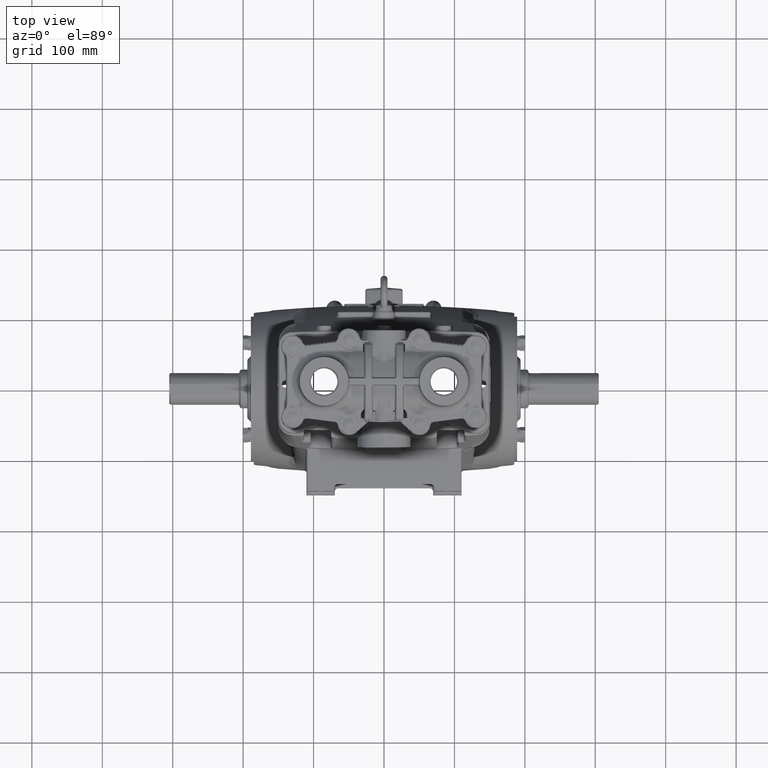
[diagram: clean part render]
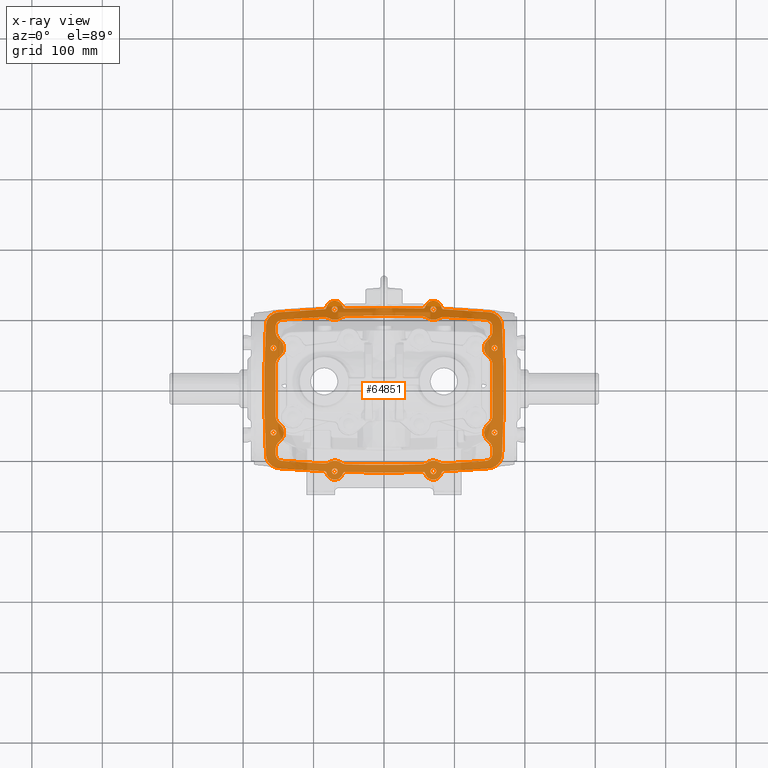
[diagram: x-ray — body ghosted, one internal face saturated and labeled with its STEP entity id]
A machine part, top view, then the same camera in x-ray: the body is ghosted and one INTERNAL B-rep face — a face not visible from any outside direction — is saturated and labeled: STEP entity #64851.
In plain terms, the highlighted planar face has unit normal (0, 0, 1).
Its self-contained STEP definition (entity closure, byte-faithful):
#191 = CIRCLE ( 'NONE', #108777, 0.5905511811023621549 ) ;
#237 = CARTESIAN_POINT ( 'NONE',  ( -6.346788388989827112, 4.158912506612504778, -4.527559055118114628 ) ) ;
#353 = ORIENTED_EDGE ( 'NONE', *, *, #107981, .F. ) ;
#385 = AXIS2_PLACEMENT_3D ( 'NONE', #97761, #44696, #98326 ) ;
#721 = EDGE_CURVE ( 'NONE', #83625, #53942, #76412, .T. ) ;
#967 = CARTESIAN_POINT ( 'NONE',  ( 6.550717241165086691, 3.855181297312167299, -4.527559059533915686 ) ) ;
#987 = CARTESIAN_POINT ( 'NONE',  ( -6.181102362204724976, -2.362204724409448620, -4.527559055118112852 ) ) ;
#1199 = DIRECTION ( 'NONE',  ( -1.000000000000000000, 0.000000000000000000, 0.000000000000000000 ) ) ;
#1397 = EDGE_CURVE ( 'NONE', #49953, #100385, #17305, .T. ) ;
#1490 = CARTESIAN_POINT ( 'NONE',  ( -5.879406437470317215, -4.362012849815289250, -4.527559055118119957 ) ) ;
#1527 = CARTESIAN_POINT ( 'NONE',  ( 6.551703232239094454, 3.852550415445902487, -4.527559054626294710 ) ) ;
#1879 = CARTESIAN_POINT ( 'NONE',  ( 1.982082809892522723, -4.578873645653913194, -4.527559055118103082 ) ) ;
#1949 = CARTESIAN_POINT ( 'NONE',  ( -2.755905511811023612, -4.527559055118110187, -4.527559055118112852 ) ) ;
#2188 = CARTESIAN_POINT ( 'NONE',  ( 6.053961767976193009, 3.648502635165158381, -4.527559055118112852 ) ) ;
#2230 = FACE_BOUND ( 'NONE', #80156, .T. ) ;
#2704 = CARTESIAN_POINT ( 'NONE',  ( 6.062992125984250968, 3.913390656378558319, -4.527559055118112852 ) ) ;
#2802 = DIRECTION ( 'NONE',  ( 0.000000000000000000, 0.000000000000000000, 1.000000000000000000 ) ) ;
#2897 = DIRECTION ( 'NONE',  ( -0.000000000000000000, -0.000000000000000000, -1.000000000000000000 ) ) ;
#2910 = CARTESIAN_POINT ( 'NONE',  ( -0.000000000000000000, -66.69291338582677042, -4.527559055118112852 ) ) ;
#3331 = CARTESIAN_POINT ( 'NONE',  ( 6.062992125982547442, 3.600663055950759084, -4.527559055118112852 ) ) ;
#3367 = FACE_BOUND ( 'NONE', #85688, .T. ) ;
#3557 = CARTESIAN_POINT ( 'NONE',  ( 6.181102362204724976, -2.362204724409448620, -4.527559055118112852 ) ) ;
#3651 = B_SPLINE_CURVE_WITH_KNOTS ( 'NONE', 3,
 ( #59558, #52055, #87832, #43984, #25604, #237, #35334, #85534, #70515, #7176, #58997, #112611 ),
 .UNSPECIFIED., .F., .F.,
 ( 4, 2, 2, 2, 2, 4 ),
 ( 0.000000000000000000, 0.2499999999999993339, 0.4999999999999986677, 0.6249999999999983347, 0.7499999999999980016, 1.000000000000000000 ),
 .UNSPECIFIED. ) ;
#3841 = CIRCLE ( 'NONE', #64507, 0.1648818897637794323 ) ;
#3856 = CARTESIAN_POINT ( 'NONE',  ( -5.886072516958916978, 3.883459699004531362, -4.527559055118111964 ) ) ;
#3912 = CARTESIAN_POINT ( 'NONE',  ( 5.030059304290442235, 4.432754126991040877, -4.527559055118112852 ) ) ;
#4035 = DIRECTION ( 'NONE',  ( -0.000000000000000000, -0.000000000000000000, -1.000000000000000000 ) ) ;
#4147 = CARTESIAN_POINT ( 'NONE',  ( 2.184664243010236984, -4.572640839853370665, -4.527559055118109299 ) ) ;
#4224 = EDGE_CURVE ( 'NONE', #78570, #17193, #66413, .T. ) ;
#4360 = CARTESIAN_POINT ( 'NONE',  ( -3.049785051742431641, -4.015323256377824279, -4.527559055118112852 ) ) ;
#4586 = EDGE_CURVE ( 'NONE', #84804, #68071, #64673, .T. ) ;
#4814 = CARTESIAN_POINT ( 'NONE',  ( -5.992229197395656293, -3.781670431890094886, -4.527559055118112852 ) ) ;
#4966 = DIRECTION ( 'NONE',  ( -1.000000000000000000, 0.000000000000000000, 0.000000000000000000 ) ) ;
#5004 = CARTESIAN_POINT ( 'NONE',  ( -5.797170541048183523, 3.926740243256582996, -4.527559055118112852 ) ) ;
#5113 = CARTESIAN_POINT ( 'NONE',  ( 5.879406437470317215, -4.362012849815289250, -4.527559055118119957 ) ) ;
#5164 = CIRCLE ( 'NONE', #102658, 70.86614173228346658 ) ;
#5291 = VERTEX_POINT ( 'NONE', #81755 ) ;
#5628 = CARTESIAN_POINT ( 'NONE',  ( 6.561775086568054860, 3.824112742090254979, -4.527556538595037594 ) ) ;
#5658 = CARTESIAN_POINT ( 'NONE',  ( 2.268550941128260057, 4.603065200252266287, -4.527559055118112852 ) ) ;
#5903 = ORIENTED_EDGE ( 'NONE', *, *, #101756, .F. ) ;
#6067 = CARTESIAN_POINT ( 'NONE',  ( -6.345984251968504353, 2.362204724409448620, -4.527559055118112852 ) ) ;
#6179 = VERTEX_POINT ( 'NONE', #17578 ) ;
#6218 = LINE ( 'NONE', #111119, #31814 ) ;
#6253 = CARTESIAN_POINT ( 'NONE',  ( 6.375931053387377645, -4.128746065034881951, -4.527559137685009283 ) ) ;
#6354 = AXIS2_PLACEMENT_3D ( 'NONE', #73651, #2802, #74218 ) ;
#6360 = DIRECTION ( 'NONE',  ( 0.000000000000000000, 0.000000000000000000, 1.000000000000000000 ) ) ;
#6385 = VERTEX_POINT ( 'NONE', #112394 ) ;
#6421 = CARTESIAN_POINT ( 'NONE',  ( -3.278698252851846906, -4.541144888009382541, -4.527559055118112852 ) ) ;
#6472 = CARTESIAN_POINT ( 'NONE',  ( -2.277635868427436261, 4.612339371012142308, -4.527559055118111964 ) ) ;
#6600 = CARTESIAN_POINT ( 'NONE',  ( -2.029801356629577835, 4.577379510450384714, -4.527559055118108411 ) ) ;
#6825 = CARTESIAN_POINT ( 'NONE',  ( -4.318936516779601220, 4.475916164768395156, -4.527559055118126174 ) ) ;
#7001 = CARTESIAN_POINT ( 'NONE',  ( -2.184664243010236984, -4.572640839853370665, -4.527559055118109299 ) ) ;
#7165 = CARTESIAN_POINT ( 'NONE',  ( -1.691562283406048861, 4.586688696761823891, -4.527559055118125286 ) ) ;
#7176 = CARTESIAN_POINT ( 'NONE',  ( -6.065161951321943690, 4.329584572309422619, -4.527559055118112852 ) ) ;
#7834 = DIRECTION ( 'NONE',  ( 0.000000000000000000, 1.000000000000000000, 0.000000000000000000 ) ) ;
#7937 = EDGE_CURVE ( 'NONE', #63915, #61208, #109209, .T. ) ;
#7978 = CARTESIAN_POINT ( 'NONE',  ( 6.552953609278827862, -3.849267487790611675, -4.527559274112028298 ) ) ;
#8132 = CARTESIAN_POINT ( 'NONE',  ( 0.000000000000000000, 66.69291338582677042, -4.527559055118112852 ) ) ;
#8187 = AXIS2_PLACEMENT_3D ( 'NONE', #40818, #32146, #67326 ) ;
#8253 = CARTESIAN_POINT ( 'NONE',  ( -2.184664243010236984, -4.572640839853370665, -4.527559055118109299 ) ) ;
#8402 = AXIS2_PLACEMENT_3D ( 'NONE', #46059, #21287, #81257 ) ;
#8534 = CARTESIAN_POINT ( 'NONE',  ( -2.920787401574802100, 4.527559055118110187, -4.527559055118112852 ) ) ;
#8541 = B_SPLINE_CURVE_WITH_KNOTS ( 'NONE', 3,
 ( #77957, #23271, #77387, #113121 ),
 .UNSPECIFIED., .F., .F.,
 ( 4, 4 ),
 ( 0.000000000000000000, 0.3323746915759632214 ),
 .UNSPECIFIED. ) ;
#8558 = CARTESIAN_POINT ( 'NONE',  ( 6.379685742671389548, -4.124889856547580003, -4.527559055118111964 ) ) ;
#8647 = EDGE_CURVE ( 'NONE', #41620, #111870, #63176, .T. ) ;
#8685 = VERTEX_POINT ( 'NONE', #35614 ) ;
#8712 = VERTEX_POINT ( 'NONE', #80023 ) ;
#8723 = EDGE_CURVE ( 'NONE', #100493, #87694, #109572, .T. ) ;
#8894 = VERTEX_POINT ( 'NONE', #30940 ) ;
#8996 = CARTESIAN_POINT ( 'NONE',  ( -2.755905511811023612, 4.527559055118110187, -4.527559055118112852 ) ) ;
#9183 = CARTESIAN_POINT ( 'NONE',  ( 5.797305020376535722, -3.926708323751075813, -4.527559055118112852 ) ) ;
#9274 = ORIENTED_EDGE ( 'NONE', *, *, #721, .T. ) ;
#9281 = ORIENTED_EDGE ( 'NONE', *, *, #29581, .F. ) ;
#9391 = CARTESIAN_POINT ( 'NONE',  ( 3.218718072077385361, -4.622453630624762333, -4.527559055118111075 ) ) ;
#9493 = CARTESIAN_POINT ( 'NONE',  ( -6.016220472440945599, -2.362204724409448620, -4.527559055118112852 ) ) ;
#9605 = CARTESIAN_POINT ( 'NONE',  ( 6.096204545056369994, 4.313861218164448452, -4.527627350889201097 ) ) ;
#9696 = ORIENTED_EDGE ( 'NONE', *, *, #81436, .T. ) ;
#9721 = DIRECTION ( 'NONE',  ( -0.000000000000000000, 0.000000000000000000, 1.000000000000000000 ) ) ;
#9911 = AXIS2_PLACEMENT_3D ( 'NONE', #60974, #9721, #78315 ) ;
#10063 = CARTESIAN_POINT ( 'NONE',  ( 6.181102362204724976, 2.362204724409448620, -4.527559055118112852 ) ) ;
#10112 = ORIENTED_EDGE ( 'NONE', *, *, #49494, .F. ) ;
#10150 = CARTESIAN_POINT ( 'NONE',  ( 3.218718072077385361, -4.622453630624762333, -4.527559055118111075 ) ) ;
#10288 = CARTESIAN_POINT ( 'NONE',  ( -3.218718072077385361, -4.622453630624762333, -4.527559055118111075 ) ) ;
#10822 = CARTESIAN_POINT ( 'NONE',  ( 5.886072516958916978, 3.883459699004531362, -4.527559055118111964 ) ) ;
#10839 = EDGE_CURVE ( 'NONE', #25745, #23399, #41771, .T. ) ;
#10865 = FACE_BOUND ( 'NONE', #109062, .T. ) ;
#11301 = DIRECTION ( 'NONE',  ( -0.000000000000000000, -0.000000000000000000, 1.000000000000000000 ) ) ;
#11344 = LINE ( 'NONE', #2704, #102891 ) ;
#11387 = CIRCLE ( 'NONE', #385, 70.86614173228346658 ) ;
#11475 = CARTESIAN_POINT ( 'NONE',  ( 5.800667925239070044, -4.368569230770974698, -4.527559055118127063 ) ) ;
#11576 = ORIENTED_EDGE ( 'NONE', *, *, #43547, .T. ) ;
#11646 = VERTEX_POINT ( 'NONE', #27985 ) ;
#11706 = B_SPLINE_CURVE_WITH_KNOTS ( 'NONE', 3,
 ( #100403, #12781, #81946, #47887, #38120, #1879, #4147 ),
 .UNSPECIFIED., .F., .F.,
 ( 4, 1, 1, 1, 4 ),
 ( 0.000000000000000000, 0.08245597491133860313, 0.1485427382782447125, 0.1620810417057126085, 0.2223918696806881645 ),
 .UNSPECIFIED. ) ;
#11933 = EDGE_CURVE ( 'NONE', #86952, #63921, #100896, .T. ) ;
#11967 = CARTESIAN_POINT ( 'NONE',  ( 6.026870693957132374, 3.717705103390182231, -4.527559055118112852 ) ) ;
#12106 = VERTEX_POINT ( 'NONE', #57552 ) ;
#12190 = CARTESIAN_POINT ( 'NONE',  ( 2.090737782238299314, 3.551569976521154803, -4.527559055118468123 ) ) ;
#12245 = ORIENTED_EDGE ( 'NONE', *, *, #81477, .T. ) ;
#12314 = CARTESIAN_POINT ( 'NONE',  ( 3.303134381953814369, 4.531468201277822239, -4.527559055118112852 ) ) ;
#12643 = ORIENTED_EDGE ( 'NONE', *, *, #20781, .T. ) ;
#12675 = VERTEX_POINT ( 'NONE', #67108 ) ;
#12781 = CARTESIAN_POINT ( 'NONE',  ( 0.2620379937659005343, -4.606299212598425008, -4.527559055118111964 ) ) ;
#12788 = CARTESIAN_POINT ( 'NONE',  ( -3.267558620430933480, -4.547873311935165752, -4.527559055118112852 ) ) ;
#12895 = CARTESIAN_POINT ( 'NONE',  ( -6.181102362204724976, 2.362204724409448620, -4.527559055118112852 ) ) ;
#12938 = CARTESIAN_POINT ( 'NONE',  ( 2.301875005864905788, 4.658160533177150953, -4.527559055118111075 ) ) ;
#12994 = ORIENTED_EDGE ( 'NONE', *, *, #85521, .F. ) ;
#13000 = EDGE_CURVE ( 'NONE', #8894, #65508, #47038, .T. ) ;
#13320 = CARTESIAN_POINT ( 'NONE',  ( -5.472440944881891589, -1.417322834645668328, -4.527559055118468123 ) ) ;
#13471 = DIRECTION ( 'NONE',  ( 1.000000000000000000, 0.000000000000000000, 0.000000000000000000 ) ) ;
#13937 = CARTESIAN_POINT ( 'NONE',  ( 6.181102362204724976, 2.362204724409448620, -4.527559055118112852 ) ) ;
#13940 = CARTESIAN_POINT ( 'NONE',  ( -2.292606183085730276, -4.633729871843617509, -4.527559055118112852 ) ) ;
#14272 = CARTESIAN_POINT ( 'NONE',  ( 6.577697507010606515, 3.772461727793728681, -4.527544972615009655 ) ) ;
#14325 = CARTESIAN_POINT ( 'NONE',  ( -5.499118577824457788, 4.393131791324928592, -4.527559055118116405 ) ) ;
#14549 = CARTESIAN_POINT ( 'NONE',  ( -2.210749968952141042, 4.574015661613037409, -4.527559055118112852 ) ) ;
#14756 = CARTESIAN_POINT ( 'NONE',  ( 2.755905511811022723, -4.527559055118110187, -4.527559055118111075 ) ) ;
#14848 = ORIENTED_EDGE ( 'NONE', *, *, #25614, .F. ) ;
#14902 = CARTESIAN_POINT ( 'NONE',  ( 6.555980374616834361, -3.840819502588880052, -4.527559064108252151 ) ) ;
#14927 = CIRCLE ( 'NONE', #83029, 0.5905511811023621549 ) ;
#14933 = AXIS2_PLACEMENT_3D ( 'NONE', #37933, #55762, #19534 ) ;
#14965 = CARTESIAN_POINT ( 'NONE',  ( -6.600560107624472650, -3.616754329098800458, -4.527559055118112852 ) ) ;
#15220 = VERTEX_POINT ( 'NONE', #69407 ) ;
#15257 = VERTEX_POINT ( 'NONE', #70529 ) ;
#15283 = DIRECTION ( 'NONE',  ( -0.000000000000000000, -0.000000000000000000, -1.000000000000000000 ) ) ;
#15306 = DIRECTION ( 'NONE',  ( -2.792307984086930752E-16, -1.000000000000000000, 0.000000000000000000 ) ) ;
#15415 = VECTOR ( 'NONE', #49031, 39.37007874015748143 ) ;
#15427 = ORIENTED_EDGE ( 'NONE', *, *, #42611, .F. ) ;
#15463 = CARTESIAN_POINT ( 'NONE',  ( 6.364246364710533399, -4.140463639907071780, -4.527560321964006818 ) ) ;
#15583 = CARTESIAN_POINT ( 'NONE',  ( 5.826771653543307394, 2.834645669291338876, -4.527559055118112852 ) ) ;
#15616 = DIRECTION ( 'NONE',  ( -1.000000000000000000, 0.000000000000000000, 0.000000000000000000 ) ) ;
#15625 = CARTESIAN_POINT ( 'NONE',  ( -2.235702525519689843, -4.581712466974347642, -4.527559055118111964 ) ) ;
#15989 = CARTESIAN_POINT ( 'NONE',  ( 2.298243566239835722, 4.645535987155259505, -4.527559055118111964 ) ) ;
#16039 = CARTESIAN_POINT ( 'NONE',  ( 6.379233032900245348, -4.125357149080468133, -4.527559056982173757 ) ) ;
#16312 = VERTEX_POINT ( 'NONE', #91024 ) ;
#16611 = CARTESIAN_POINT ( 'NONE',  ( 6.581968600831764604, -3.753362946510235165, -4.527545619979310487 ) ) ;
#16682 = CIRCLE ( 'NONE', #70065, 0.5905511811023621549 ) ;
#16704 = EDGE_CURVE ( 'NONE', #62512, #70353, #62130, .T. ) ;
#17031 = CARTESIAN_POINT ( 'NONE',  ( 6.181102362204724976, 2.362204724409448620, -4.527559055118112852 ) ) ;
#17043 = VERTEX_POINT ( 'NONE', #106910 ) ;
#17173 = CARTESIAN_POINT ( 'NONE',  ( 6.592191961129600486, -3.700800128886814644, -4.527541042074453514 ) ) ;
#17176 = ORIENTED_EDGE ( 'NONE', *, *, #4224, .T. ) ;
#17193 = VERTEX_POINT ( 'NONE', #30186 ) ;
#17244 = CARTESIAN_POINT ( 'NONE',  ( 6.053982765578660441, -3.648366023871907338, -4.527559055118112852 ) ) ;
#17305 = CIRCLE ( 'NONE', #96459, 0.1648818897637788772 ) ;
#17512 = AXIS2_PLACEMENT_3D ( 'NONE', #13937, #47325, #82513 ) ;
#17578 = CARTESIAN_POINT ( 'NONE',  ( 6.345984251968504353, -2.362204724409448620, -4.527559055118112852 ) ) ;
#17587 = CARTESIAN_POINT ( 'NONE',  ( 2.591023622047244679, -4.527559055118110187, -4.527559055118112852 ) ) ;
#17607 = AXIS2_PLACEMENT_3D ( 'NONE', #2910, #4035, #37430 ) ;
#17646 = CARTESIAN_POINT ( 'NONE',  ( -6.313524545155750012, -4.193256081063385210, -4.527559055118112852 ) ) ;
#17817 = FACE_BOUND ( 'NONE', #65541, .T. ) ;
#17889 = ORIENTED_EDGE ( 'NONE', *, *, #48844, .T. ) ;
#18051 = CARTESIAN_POINT ( 'NONE',  ( -2.301875005864905788, 4.658160533177150953, -4.527559055118111075 ) ) ;
#18189 = CARTESIAN_POINT ( 'NONE',  ( -6.600560107624472650, -3.616754329098800458, -4.527559055118112852 ) ) ;
#18482 = CARTESIAN_POINT ( 'NONE',  ( -3.371762613452611301, -4.092969817666648247, -4.527559055118112852 ) ) ;
#18791 = CARTESIAN_POINT ( 'NONE',  ( 6.555052125795272744, 3.843476817297903025, -4.527558821732449168 ) ) ;
#18829 = DIRECTION ( 'NONE',  ( 1.000000000000000000, 0.000000000000000000, 0.000000000000000000 ) ) ;
#19035 = ORIENTED_EDGE ( 'NONE', *, *, #53527, .T. ) ;
#19084 = AXIS2_PLACEMENT_3D ( 'NONE', #14756, #33707, #7834 ) ;
#19316 = CARTESIAN_POINT ( 'NONE',  ( -6.237262097850877929, -4.247974622602526118, -4.527559055118111964 ) ) ;
#19398 = CIRCLE ( 'NONE', #48817, 0.5905511811023621549 ) ;
#19405 = DIRECTION ( 'NONE',  ( -0.000000000000000000, 0.000000000000000000, 1.000000000000000000 ) ) ;
#19506 = FACE_BOUND ( 'NONE', #28548, .T. ) ;
#19534 = DIRECTION ( 'NONE',  ( 1.000000000000000000, 0.000000000000000000, 0.000000000000000000 ) ) ;
#20143 = DIRECTION ( 'NONE',  ( 1.000000000000000000, 0.000000000000000000, 0.000000000000000000 ) ) ;
#20147 = EDGE_CURVE ( 'NONE', #34411, #76146, #64129, .T. ) ;
#20610 = ORIENTED_EDGE ( 'NONE', *, *, #29860, .T. ) ;
#20683 = CARTESIAN_POINT ( 'NONE',  ( -6.181102362204724976, -2.362204724409448620, -4.527559055118112852 ) ) ;
#20781 = EDGE_CURVE ( 'NONE', #39875, #58400, #81959, .T. ) ;
#20932 = CIRCLE ( 'NONE', #33766, 0.1648818897637794323 ) ;
#21158 = DIRECTION ( 'NONE',  ( 1.000000000000000000, 0.000000000000000000, 0.000000000000000000 ) ) ;
#21189 = FACE_BOUND ( 'NONE', #54586, .T. ) ;
#21236 = CARTESIAN_POINT ( 'NONE',  ( 3.328922505631730644, -4.528106265104127282, -4.527559055118120845 ) ) ;
#21287 = DIRECTION ( 'NONE',  ( 0.000000000000000000, 0.000000000000000000, 1.000000000000000000 ) ) ;
#21337 = CARTESIAN_POINT ( 'NONE',  ( 5.472440944881890701, 1.417322834645668328, -4.527559055118468123 ) ) ;
#21495 = CARTESIAN_POINT ( 'NONE',  ( -5.884895549513077029, -3.881500344081061815, -4.527559055118114628 ) ) ;
#21609 = DIRECTION ( 'NONE',  ( 0.000000000000000000, 0.000000000000000000, 1.000000000000000000 ) ) ;
#21903 = DIRECTION ( 'NONE',  ( 0.000000000000000000, 0.000000000000000000, 1.000000000000000000 ) ) ;
#21996 = ORIENTED_EDGE ( 'NONE', *, *, #110941, .T. ) ;
#22262 = CARTESIAN_POINT ( 'NONE',  ( -2.301868522158472707, -4.658137990739988687, -4.527559055118111075 ) ) ;
#22381 = CARTESIAN_POINT ( 'NONE',  ( 5.331292380570872957, -4.406861632343579416, -4.527559055118130615 ) ) ;
#22393 = DIRECTION ( 'NONE',  ( -0.000000000000000000, -0.000000000000000000, -1.000000000000000000 ) ) ;
#22596 = CARTESIAN_POINT ( 'NONE',  ( 2.298237550475097812, -4.645512712054865823, -4.527559055118112852 ) ) ;
#22651 = AXIS2_PLACEMENT_3D ( 'NONE', #8132, #113565, #15616 ) ;
#22908 = CARTESIAN_POINT ( 'NONE',  ( 6.596162701750897028, 3.670358697231748124, -4.527539352087572411 ) ) ;
#23244 = CARTESIAN_POINT ( 'NONE',  ( 3.278739526087892653, 4.541143357911529677, -4.527559055118111964 ) ) ;
#23271 = CARTESIAN_POINT ( 'NONE',  ( 0.7288146890678441903, 4.606298740546600712, -4.527559055118112852 ) ) ;
#23396 = EDGE_CURVE ( 'NONE', #107299, #77802, #110610, .T. ) ;
#23399 = VERTEX_POINT ( 'NONE', #109622 ) ;
#23403 = VERTEX_POINT ( 'NONE', #93462 ) ;
#23513 = CARTESIAN_POINT ( 'NONE',  ( 2.247385770705629948, 4.587606729715097309, -4.527559055118112852 ) ) ;
#23726 = ORIENTED_EDGE ( 'NONE', *, *, #64361, .F. ) ;
#23761 = CARTESIAN_POINT ( 'NONE',  ( -2.235757232046924781, 4.581764804036616567, -4.527559055118112852 ) ) ;
#23838 = B_SPLINE_CURVE_WITH_KNOTS ( 'NONE', 3,
 ( #113172, #34195, #24444, #103408, #112601, #7165, #6600, #76882, #93064 ),
 .UNSPECIFIED., .F., .F.,
 ( 4, 1, 1, 1, 1, 1, 4 ),
 ( 0.000000000000000000, 0.08065781229441630618, 0.1231526603624849697, 0.1535797776903936596, 0.2281809857477444525, 0.2729276204612534618, 0.2791431374105662888 ),
 .UNSPECIFIED. ) ;
#23955 = EDGE_CURVE ( 'NONE', #100493, #26799, #54213, .T. ) ;
#24046 = CARTESIAN_POINT ( 'NONE',  ( 6.600148714162009433, 3.624804692439511200, -4.527559055118112852 ) ) ;
#24080 = DIRECTION ( 'NONE',  ( -0.000000000000000000, -0.000000000000000000, 1.000000000000000000 ) ) ;
#24118 = CARTESIAN_POINT ( 'NONE',  ( 6.558057247203440632, -3.834910975852602100, -4.527559030807644547 ) ) ;
#24261 = CARTESIAN_POINT ( 'NONE',  ( 6.062992125984250968, 3.913390656378558319, -4.527559055118112852 ) ) ;
#24444 = CARTESIAN_POINT ( 'NONE',  ( -0.5120726337373385784, 4.604997277000427047, -4.527559055118099529 ) ) ;
#24627 = CIRCLE ( 'NONE', #19084, 0.4724409448818896462 ) ;
#24634 = DIRECTION ( 'NONE',  ( -1.000000000000000000, 0.000000000000000000, 0.000000000000000000 ) ) ;
#24637 = DIRECTION ( 'NONE',  ( -1.000000000000000000, 0.000000000000000000, 0.000000000000000000 ) ) ;
#24645 = CARTESIAN_POINT ( 'NONE',  ( 2.184673463171597607, 4.572659355340269904, -4.527559055118110187 ) ) ;
#24764 = EDGE_CURVE ( 'NONE', #106641, #51918, #92641, .T. ) ;
#24771 = CARTESIAN_POINT ( 'NONE',  ( -3.315793298557895508, 4.528736566498901439, -4.527559055118112852 ) ) ;
#24779 = CIRCLE ( 'NONE', #78158, 0.1648818897637788772 ) ;
#24979 = ORIENTED_EDGE ( 'NONE', *, *, #106533, .T. ) ;
#25103 = EDGE_LOOP ( 'NONE', ( #80317, #30340 ) ) ;
#25203 = DIRECTION ( 'NONE',  ( -1.000000000000000000, 0.000000000000000000, 0.000000000000000000 ) ) ;
#25210 = DIRECTION ( 'NONE',  ( -2.792307984086930752E-16, -1.000000000000000000, 0.000000000000000000 ) ) ;
#25242 = CARTESIAN_POINT ( 'NONE',  ( -5.008397791184984627, 4.430007326026821346, -4.527559055118102194 ) ) ;
#25263 = CARTESIAN_POINT ( 'NONE',  ( 6.537382661172731702, -3.888492946496771463, -4.527565092937993363 ) ) ;
#25331 = CARTESIAN_POINT ( 'NONE',  ( 5.923858486906225629, -3.852503442952278867, -4.527559055118112852 ) ) ;
#25604 = CARTESIAN_POINT ( 'NONE',  ( -6.446171551520763821, 4.056154623273830140, -4.527559055118112852 ) ) ;
#25614 = EDGE_CURVE ( 'NONE', #76146, #90800, #24627, .T. ) ;
#25745 = VERTEX_POINT ( 'NONE', #70038 ) ;
#25836 = CARTESIAN_POINT ( 'NONE',  ( 6.430949831131437477, -4.068524562397514366, -4.527577806200107524 ) ) ;
#25842 = ORIENTED_EDGE ( 'NONE', *, *, #94742, .F. ) ;
#25930 = AXIS2_PLACEMENT_3D ( 'NONE', #79134, #80286, #52608 ) ;
#26416 = VERTEX_POINT ( 'NONE', #66242 ) ;
#26432 = AXIS2_PLACEMENT_3D ( 'NONE', #65413, #82717, #100615 ) ;
#26799 = VERTEX_POINT ( 'NONE', #100618 ) ;
#26822 = CIRCLE ( 'NONE', #17607, 70.86614173228346658 ) ;
#26920 = EDGE_CURVE ( 'NONE', #84696, #36874, #113285, .T. ) ;
#27457 = CARTESIAN_POINT ( 'NONE',  ( 6.544981192962105787, 3.870303017804972878, -4.527559337738292555 ) ) ;
#27467 = B_SPLINE_CURVE_WITH_KNOTS ( 'NONE', 3,
 ( #10150, #90237, #79875, #37172, #46375, #36049, #53889, #72928, #71233, #28000 ),
 .UNSPECIFIED., .F., .F.,
 ( 4, 2, 2, 2, 4 ),
 ( 0.000000000000000000, 0.0009868406459179513996, 0.001973681291835902799, 0.002960521937753854416, 0.003947362583671805598 ),
 .UNSPECIFIED. ) ;
#27473 = DIRECTION ( 'NONE',  ( -0.000000000000000000, -0.000000000000000000, -1.000000000000000000 ) ) ;
#27955 = CARTESIAN_POINT ( 'NONE',  ( -3.328922505631730644, -4.528106265104127282, -4.527559055118120845 ) ) ;
#27985 = CARTESIAN_POINT ( 'NONE',  ( 6.016220472440945599, -2.362204724409448620, -4.527559055118112852 ) ) ;
#28000 = CARTESIAN_POINT ( 'NONE',  ( 3.328922505631730644, -4.528106265104127282, -4.527559055118120845 ) ) ;
#28018 = CARTESIAN_POINT ( 'NONE',  ( 6.538974363690187808, 3.884780772470783017, -4.527561312493400436 ) ) ;
#28091 = CARTESIAN_POINT ( 'NONE',  ( -1.456983645255871540, -4.595083770303523885, -4.527559055118112852 ) ) ;
#28190 = VERTEX_POINT ( 'NONE', #48559 ) ;
#28441 = EDGE_CURVE ( 'NONE', #99694, #52296, #16682, .T. ) ;
#28548 = EDGE_LOOP ( 'NONE', ( #70157, #107358 ) ) ;
#28587 = AXIS2_PLACEMENT_3D ( 'NONE', #74061, #21609, #93638 ) ;
#28702 = CARTESIAN_POINT ( 'NONE',  ( 4.179892134588142127, 4.488125591045752927, -4.527559055118112852 ) ) ;
#28763 = CARTESIAN_POINT ( 'NONE',  ( 6.062992125984252745, -3.551118876338646757, -4.527559055118112852 ) ) ;
#29231 = CARTESIAN_POINT ( 'NONE',  ( 6.015946701117344197, 3.739446117129830771, -4.527559055118112852 ) ) ;
#29345 = DIRECTION ( 'NONE',  ( -0.000000000000000000, -0.000000000000000000, 1.000000000000000000 ) ) ;
#29411 = EDGE_CURVE ( 'NONE', #30651, #5291, #94559, .T. ) ;
#29581 = EDGE_CURVE ( 'NONE', #52296, #65506, #109286, .T. ) ;
#29782 = CARTESIAN_POINT ( 'NONE',  ( 5.797170541048183523, 3.926740243256582996, -4.527559055118112852 ) ) ;
#29819 = PLANE ( 'NONE',  #6354 ) ;
#29860 = EDGE_CURVE ( 'NONE', #34134, #48064, #46712, .T. ) ;
#29898 = ORIENTED_EDGE ( 'NONE', *, *, #112910, .T. ) ;
#30186 = CARTESIAN_POINT ( 'NONE',  ( 5.826771653543308283, -1.889763779527558141, -4.527559055118112852 ) ) ;
#30340 = ORIENTED_EDGE ( 'NONE', *, *, #65368, .F. ) ;
#30461 = CARTESIAN_POINT ( 'NONE',  ( 5.964696317791212898, -4.351390121095508157, -4.527578831494900591 ) ) ;
#30651 = VERTEX_POINT ( 'NONE', #72437 ) ;
#30756 = B_SPLINE_CURVE_WITH_KNOTS ( 'NONE', 3,
 ( #94070, #85405, #60000, #6472, #39902, #41592, #23761, #14549, #49644, #111367 ),
 .UNSPECIFIED., .F., .F.,
 ( 4, 2, 2, 2, 4 ),
 ( 0.000000000000000000, 0.0009867956087020789222, 0.001973591217404157844, 0.002960386826106236983, 0.003947182434808315689 ),
 .UNSPECIFIED. ) ;
#30794 = CARTESIAN_POINT ( 'NONE',  ( -2.755905511811023612, -4.527559055118110187, -4.527559055118112852 ) ) ;
#30887 = CARTESIAN_POINT ( 'NONE',  ( -6.053961767976193009, 3.648502635165158381, -4.527559055118112852 ) ) ;
#30940 = CARTESIAN_POINT ( 'NONE',  ( -2.423321647024605507, -4.039564515819641599, -4.527559055118112852 ) ) ;
#31097 = CARTESIAN_POINT ( 'NONE',  ( 3.371762613452496726, 4.092969817666639365, -4.527559055118112852 ) ) ;
#31221 = CARTESIAN_POINT ( 'NONE',  ( -6.062992125984250968, 3.913390656378558319, -4.527559055118112852 ) ) ;
#31250 = CARTESIAN_POINT ( 'NONE',  ( -5.797305020376535722, -3.926708323751075813, -4.527559055118112852 ) ) ;
#31480 = EDGE_CURVE ( 'NONE', #62512, #34411, #11706, .T. ) ;
#31589 = CIRCLE ( 'NONE', #53699, 70.86614173228346658 ) ;
#31590 = ORIENTED_EDGE ( 'NONE', *, *, #8647, .T. ) ;
#31744 = CARTESIAN_POINT ( 'NONE',  ( -2.298237550475097812, -4.645512712054865823, -4.527559055118112852 ) ) ;
#31776 = CARTESIAN_POINT ( 'NONE',  ( 2.268484970017632385, -4.602983591615316783, -4.527559055118112852 ) ) ;
#31814 = VECTOR ( 'NONE', #58621, 39.37007874015748143 ) ;
#31816 = CARTESIAN_POINT ( 'NONE',  ( -6.017994388977596643, -3.740461645815649216, -4.527559055118112852 ) ) ;
#32146 = DIRECTION ( 'NONE',  ( -0.000000000000000000, -0.000000000000000000, -1.000000000000000000 ) ) ;
#32208 = VERTEX_POINT ( 'NONE', #12938 ) ;
#32248 = CARTESIAN_POINT ( 'NONE',  ( -3.303134381953814369, 4.531468201277822239, -4.527559055118112852 ) ) ;
#32289 = AXIS2_PLACEMENT_3D ( 'NONE', #35679, #113534, #107157 ) ;
#33688 = DIRECTION ( 'NONE',  ( -0.000000000000000000, -2.161924116452754738E-16, -1.000000000000000000 ) ) ;
#33707 = DIRECTION ( 'NONE',  ( -0.000000000000000000, -2.161924116452754738E-16, 1.000000000000000000 ) ) ;
#33766 = AXIS2_PLACEMENT_3D ( 'NONE', #97985, #2897, #1199 ) ;
#33799 = DIRECTION ( 'NONE',  ( -1.000000000000000000, 0.000000000000000000, 0.000000000000000000 ) ) ;
#33806 = DIRECTION ( 'NONE',  ( -0.000000000000000000, -0.000000000000000000, -1.000000000000000000 ) ) ;
#33859 = VERTEX_POINT ( 'NONE', #56231 ) ;
#34134 = VERTEX_POINT ( 'NONE', #113262 ) ;
#34195 = CARTESIAN_POINT ( 'NONE',  ( -0.2007609337546076567, 4.606299212598427673, -4.527559055118114628 ) ) ;
#34364 = CARTESIAN_POINT ( 'NONE',  ( 6.225416457589522778, 4.250397564110908633, -4.527617201274032332 ) ) ;
#34374 = DIRECTION ( 'NONE',  ( -0.000000000000000000, -0.000000000000000000, -1.000000000000000000 ) ) ;
#34411 = VERTEX_POINT ( 'NONE', #77954 ) ;
#34417 = CIRCLE ( 'NONE', #69412, 0.5905511811023621549 ) ;
#34434 = CARTESIAN_POINT ( 'NONE',  ( 6.343687403040700445, -4.159918931757060179, -4.527565574290991712 ) ) ;
#34933 = CARTESIAN_POINT ( 'NONE',  ( 5.964729695128633935, 4.351392838085758719, -4.527578855211051412 ) ) ;
#34993 = CARTESIAN_POINT ( 'NONE',  ( 2.184673463171597607, 4.572659355340269904, -4.527559055118110187 ) ) ;
#35015 = ORIENTED_EDGE ( 'NONE', *, *, #46771, .T. ) ;
#35334 = CARTESIAN_POINT ( 'NONE',  ( -6.311178901938052199, 4.189708015627557458, -4.527559055118113740 ) ) ;
#35418 = DIRECTION ( 'NONE',  ( 1.000000000000000000, 0.000000000000000000, 0.000000000000000000 ) ) ;
#35482 = EDGE_CURVE ( 'NONE', #95163, #91465, #20932, .T. ) ;
#35499 = VERTEX_POINT ( 'NONE', #36298 ) ;
#35611 = ORIENTED_EDGE ( 'NONE', *, *, #104487, .F. ) ;
#35614 = CARTESIAN_POINT ( 'NONE',  ( 6.600559661187499039, 3.616763065107670982, -4.527559055118112852 ) ) ;
#35679 = CARTESIAN_POINT ( 'NONE',  ( -2.755905511811023612, 4.527559055118110187, -4.527559055118112852 ) ) ;
#35901 = CIRCLE ( 'NONE', #17512, 0.1648818897637794323 ) ;
#36049 = CARTESIAN_POINT ( 'NONE',  ( 3.267558620430933480, -4.547873311935165752, -4.527559055118112852 ) ) ;
#36067 = CARTESIAN_POINT ( 'NONE',  ( 6.511138886662662273, 3.947298450261657266, -4.527572257922946264 ) ) ;
#36209 = CARTESIAN_POINT ( 'NONE',  ( 6.062992125982549219, -3.600580111164407349, -4.527559055118113740 ) ) ;
#36298 = CARTESIAN_POINT ( 'NONE',  ( 6.600560107624472650, -3.616754329098800458, -4.527559055118112852 ) ) ;
#36367 = ORIENTED_EDGE ( 'NONE', *, *, #68407, .T. ) ;
#36621 = CARTESIAN_POINT ( 'NONE',  ( 6.412267417697667504, 4.089206622872432639, -4.527565893692295340 ) ) ;
#36622 = CIRCLE ( 'NONE', #101079, 0.1648818897637794323 ) ;
#36665 = CARTESIAN_POINT ( 'NONE',  ( -5.700963357233979067, -3.943543637579805416, -4.527559055118112852 ) ) ;
#36874 = VERTEX_POINT ( 'NONE', #65998 ) ;
#36961 = DIRECTION ( 'NONE',  ( -0.000000000000000000, 0.000000000000000000, 1.000000000000000000 ) ) ;
#37054 = DIRECTION ( 'NONE',  ( -1.000000000000000000, 0.000000000000000000, 0.000000000000000000 ) ) ;
#37172 = CARTESIAN_POINT ( 'NONE',  ( 3.239321566170551669, -4.574884123233616151, -4.527559055118111964 ) ) ;
#37222 = DIRECTION ( 'NONE',  ( 1.000000000000000000, 0.000000000000000000, 0.000000000000000000 ) ) ;
#37430 = DIRECTION ( 'NONE',  ( -1.000000000000000000, 0.000000000000000000, 0.000000000000000000 ) ) ;
#37933 = CARTESIAN_POINT ( 'NONE',  ( 6.181102362204724976, -2.362204724409448620, -4.527559055118112852 ) ) ;
#38077 = ORIENTED_EDGE ( 'NONE', *, *, #97428, .T. ) ;
#38115 = CIRCLE ( 'NONE', #76813, 0.5905511811023627100 ) ;
#38120 = CARTESIAN_POINT ( 'NONE',  ( 1.735429068353783855, -4.585415369245529504, -4.527559055118102194 ) ) ;
#38131 = B_SPLINE_CURVE_WITH_KNOTS ( 'NONE', 3,
 ( #21236, #39077, #109995, #84043, #22381, #11475, #5113 ),
 .UNSPECIFIED., .F., .F.,
 ( 4, 1, 1, 1, 4 ),
 ( 0.3348998987274703909, 0.3816615192807322754, 0.4455869205094645236, 0.5591388548532691960, 0.5820483711585795472 ),
 .UNSPECIFIED. ) ;
#38215 = CARTESIAN_POINT ( 'NONE',  ( 3.315793298557895508, 4.528736566498901439, -4.527559055118112852 ) ) ;
#38231 = DIRECTION ( 'NONE',  ( -1.000000000000000000, 0.000000000000000000, 0.000000000000000000 ) ) ;
#38465 = FACE_OUTER_BOUND ( 'NONE', #38977, .T. ) ;
#38546 = ORIENTED_EDGE ( 'NONE', *, *, #108529, .T. ) ;
#38660 = DIRECTION ( 'NONE',  ( 1.000000000000000000, 0.000000000000000000, 0.000000000000000000 ) ) ;
#38812 = DIRECTION ( 'NONE',  ( -0.000000000000000000, 0.000000000000000000, 1.000000000000000000 ) ) ;
#38962 = CARTESIAN_POINT ( 'NONE',  ( -5.925075010475011617, 3.854462894930444250, -4.527559055118112852 ) ) ;
#38977 = EDGE_LOOP ( 'NONE', ( #101256, #19035, #89683, #48087, #58835, #17889, #46754, #49059, #76491, #106915, #39892, #52497, #110862, #111168, #48076, #83609, #15427, #14848, #93539, #55291, #105908, #43094, #38546, #43967, #21996, #38077 ) ) ;
#39070 = CARTESIAN_POINT ( 'NONE',  ( 6.016220472440945599, 2.362204724409448620, -4.527559055118112852 ) ) ;
#39077 = CARTESIAN_POINT ( 'NONE',  ( 3.488699140663553244, -4.520580502336806639, -4.527559055118133280 ) ) ;
#39104 = CARTESIAN_POINT ( 'NONE',  ( 5.879406437470317215, -4.362012849815289250, -4.527559055118119957 ) ) ;
#39693 = CARTESIAN_POINT ( 'NONE',  ( 6.182766099457831288, -4.274543490388076350, -4.527629398345876410 ) ) ;
#39764 = ORIENTED_EDGE ( 'NONE', *, *, #101914, .T. ) ;
#39875 = VERTEX_POINT ( 'NONE', #78778 ) ;
#39889 = CARTESIAN_POINT ( 'NONE',  ( 2.247303828480326615, -4.587535846743799439, -4.527559055118112852 ) ) ;
#39892 = ORIENTED_EDGE ( 'NONE', *, *, #23955, .F. ) ;
#39902 = CARTESIAN_POINT ( 'NONE',  ( -2.268550941128260057, 4.603065200252266287, -4.527559055118112852 ) ) ;
#40118 = CARTESIAN_POINT ( 'NONE',  ( -6.026870693957132374, 3.717705103390182231, -4.527559055118112852 ) ) ;
#40305 = ORIENTED_EDGE ( 'NONE', *, *, #35482, .F. ) ;
#40345 = AXIS2_PLACEMENT_3D ( 'NONE', #102095, #40966, #67477 ) ;
#40486 = ORIENTED_EDGE ( 'NONE', *, *, #98922, .F. ) ;
#40762 = CARTESIAN_POINT ( 'NONE',  ( 6.557089269401864762, 3.837726494392773802, -4.527558286659845166 ) ) ;
#40818 = CARTESIAN_POINT ( 'NONE',  ( -2.755905511811023612, 4.527559055118110187, -4.527559055118112852 ) ) ;
#40966 = DIRECTION ( 'NONE',  ( -0.000000000000000000, -0.000000000000000000, -1.000000000000000000 ) ) ;
#41201 = CARTESIAN_POINT ( 'NONE',  ( -6.600559661187499039, 3.616763065107670982, -4.527559055118112852 ) ) ;
#41231 = CARTESIAN_POINT ( 'NONE',  ( 5.700963357233979067, -3.943543637579805416, -4.527559055118112852 ) ) ;
#41382 = CARTESIAN_POINT ( 'NONE',  ( 6.334331545056313573, -4.168288726239882891, -4.527569043424352735 ) ) ;
#41592 = CARTESIAN_POINT ( 'NONE',  ( -2.247385770705629948, 4.587606729715097309, -4.527559055118112852 ) ) ;
#41620 = VERTEX_POINT ( 'NONE', #17587 ) ;
#41759 = DIRECTION ( 'NONE',  ( 0.000000000000000000, -0.000000000000000000, 1.000000000000000000 ) ) ;
#41771 = CIRCLE ( 'NONE', #52808, 0.5905511811023621549 ) ;
#41781 = CARTESIAN_POINT ( 'NONE',  ( 2.755905511811022723, 4.527559055118110187, -4.527559055118111075 ) ) ;
#41950 = CARTESIAN_POINT ( 'NONE',  ( 6.357440196185358161, -4.147008069210494696, -4.527561828563016810 ) ) ;
#42020 = DIRECTION ( 'NONE',  ( 1.000000000000000000, 0.000000000000000000, 0.000000000000000000 ) ) ;
#42471 = DIRECTION ( 'NONE',  ( -1.000000000000000000, 0.000000000000000000, 0.000000000000000000 ) ) ;
#42494 = CARTESIAN_POINT ( 'NONE',  ( -3.758120778972340759, 4.507400847488604256, -4.527559055118105746 ) ) ;
#42611 = EDGE_CURVE ( 'NONE', #90800, #102970, #27467, .T. ) ;
#43027 = CARTESIAN_POINT ( 'NONE',  ( 2.090737782238187847, -3.551569976521173455, -4.527559055118468123 ) ) ;
#43094 = ORIENTED_EDGE ( 'NONE', *, *, #84816, .T. ) ;
#43542 = CARTESIAN_POINT ( 'NONE',  ( -6.498147683567368382, -3.978442147609763335, -4.527559055118112852 ) ) ;
#43547 = EDGE_CURVE ( 'NONE', #113907, #48788, #98649, .T. ) ;
#43581 = CARTESIAN_POINT ( 'NONE',  ( 6.405687570488772131, 4.096785499122622021, -4.527563632256848436 ) ) ;
#43652 = CARTESIAN_POINT ( 'NONE',  ( 6.599096292987787216, -3.641806516551120421, -4.527553270889840498 ) ) ;
#43659 = CARTESIAN_POINT ( 'NONE',  ( 2.755905511811023612, -4.527559055118110187, -4.527559055118112852 ) ) ;
#43809 = EDGE_CURVE ( 'NONE', #16312, #63915, #49250, .T. ) ;
#43967 = ORIENTED_EDGE ( 'NONE', *, *, #23396, .T. ) ;
#43984 = CARTESIAN_POINT ( 'NONE',  ( -6.498306810035217040, 3.978169882527636148, -4.527559055118111964 ) ) ;
#44144 = CARTESIAN_POINT ( 'NONE',  ( 6.395928596172566927, 4.107627256519702286, -4.527561067057055411 ) ) ;
#44286 = CARTESIAN_POINT ( 'NONE',  ( 5.700963357233979067, -3.943543637579805416, -4.527559055118112852 ) ) ;
#44448 = ORIENTED_EDGE ( 'NONE', *, *, #50708, .T. ) ;
#44597 = DIRECTION ( 'NONE',  ( 1.000000000000000000, 0.000000000000000000, 0.000000000000000000 ) ) ;
#44655 = CARTESIAN_POINT ( 'NONE',  ( -6.446039039169924934, -4.056325119235122401, -4.527559055118112852 ) ) ;
#44695 = CARTESIAN_POINT ( 'NONE',  ( 6.552032517115272015, 3.851668067826408137, -4.527559049525030410 ) ) ;
#44696 = DIRECTION ( 'NONE',  ( -0.000000000000000000, -0.000000000000000000, -1.000000000000000000 ) ) ;
#44734 = EDGE_CURVE ( 'NONE', #99694, #25745, #91310, .T. ) ;
#45108 = CIRCLE ( 'NONE', #72701, 0.4724409448818896462 ) ;
#45267 = CARTESIAN_POINT ( 'NONE',  ( 6.052117922796584004, 4.329121309184671418, -4.527613220367747715 ) ) ;
#45320 = DIRECTION ( 'NONE',  ( 2.792307984086930752E-16, -1.000000000000000000, 0.000000000000000000 ) ) ;
#45343 = CARTESIAN_POINT ( 'NONE',  ( 1.166750935531556276E-15, -4.606299212598425896, -4.527559055118112852 ) ) ;
#45387 = CARTESIAN_POINT ( 'NONE',  ( -3.221356783803057677, -4.609584307767865319, -4.527559055118111964 ) ) ;
#45631 = VERTEX_POINT ( 'NONE', #28763 ) ;
#45794 = EDGE_CURVE ( 'NONE', #102970, #26416, #38131, .T. ) ;
#46059 = CARTESIAN_POINT ( 'NONE',  ( 64.17322834645669616, 0.000000000000000000, -4.527559055118112852 ) ) ;
#46375 = CARTESIAN_POINT ( 'NONE',  ( 3.247658265458240656, -4.564931273926094768, -4.527559055118112852 ) ) ;
#46712 = CIRCLE ( 'NONE', #89144, 0.5905511811023621549 ) ;
#46750 = EDGE_CURVE ( 'NONE', #74997, #68769, #69403, .T. ) ;
#46754 = ORIENTED_EDGE ( 'NONE', *, *, #55555, .F. ) ;
#46771 = EDGE_CURVE ( 'NONE', #8712, #23403, #63859, .T. ) ;
#47038 = CIRCLE ( 'NONE', #59937, 0.5905511811023621549 ) ;
#47112 = FACE_BOUND ( 'NONE', #73923, .T. ) ;
#47325 = DIRECTION ( 'NONE',  ( -0.000000000000000000, 0.000000000000000000, 1.000000000000000000 ) ) ;
#47365 = ORIENTED_EDGE ( 'NONE', *, *, #103020, .T. ) ;
#47445 = DIRECTION ( 'NONE',  ( 0.000000000000000000, 0.000000000000000000, 1.000000000000000000 ) ) ;
#47788 = CARTESIAN_POINT ( 'NONE',  ( 3.049785051742431641, -4.015323256377824279, -4.527559055118112852 ) ) ;
#47887 = CARTESIAN_POINT ( 'NONE',  ( 1.271907088491667448, -4.595311714543250936, -4.527559055118103082 ) ) ;
#47894 = CARTESIAN_POINT ( 'NONE',  ( -3.303028830331078858, -4.531474957851584051, -4.527559055118112852 ) ) ;
#47963 = CARTESIAN_POINT ( 'NONE',  ( -6.053982765578660441, -3.648366023871907338, -4.527559055118112852 ) ) ;
#48063 = DIRECTION ( 'NONE',  ( -0.000000000000000000, 2.161924116452754738E-16, 1.000000000000000000 ) ) ;
#48064 = VERTEX_POINT ( 'NONE', #47788 ) ;
#48076 = ORIENTED_EDGE ( 'NONE', *, *, #71074, .F. ) ;
#48087 = ORIENTED_EDGE ( 'NONE', *, *, #112269, .T. ) ;
#48099 = CARTESIAN_POINT ( 'NONE',  ( 3.049785051742387232, 4.015323256377798522, -4.527559055118112852 ) ) ;
#48417 = DIRECTION ( 'NONE',  ( 0.000000000000000000, 0.000000000000000000, 1.000000000000000000 ) ) ;
#48559 = CARTESIAN_POINT ( 'NONE',  ( -2.184673463171597607, 4.572659355340269904, -4.527559055118110187 ) ) ;
#48788 = VERTEX_POINT ( 'NONE', #102162 ) ;
#48817 = AXIS2_PLACEMENT_3D ( 'NONE', #82261, #64940, #21158 ) ;
#48844 = EDGE_CURVE ( 'NONE', #86952, #28190, #30756, .T. ) ;
#48955 = DIRECTION ( 'NONE',  ( -1.000000000000000000, 0.000000000000000000, 0.000000000000000000 ) ) ;
#48984 = DIRECTION ( 'NONE',  ( 0.000000000000000000, 1.000000000000000000, 0.000000000000000000 ) ) ;
#49031 = DIRECTION ( 'NONE',  ( 2.792307984086930752E-16, -1.000000000000000000, 0.000000000000000000 ) ) ;
#49059 = ORIENTED_EDGE ( 'NONE', *, *, #82345, .T. ) ;
#49080 = CARTESIAN_POINT ( 'NONE',  ( 2.292606183085730276, -4.633729871843617509, -4.527559055118112852 ) ) ;
#49250 = B_SPLINE_CURVE_WITH_KNOTS ( 'NONE', 3,
 ( #49673, #91256, #47963, #31816, #4814, #75665, #102188, #21495, #93530, #31250, #84869, #74524 ),
 .UNSPECIFIED., .F., .F.,
 ( 4, 2, 2, 2, 2, 4 ),
 ( 0.000000000000000000, 0.2500000000000009437, 0.5000000000000018874, 0.6250000000000023315, 0.7500000000000028866, 1.000000000000000000 ),
 .UNSPECIFIED. ) ;
#49376 = CARTESIAN_POINT ( 'NONE',  ( 6.564627972504243125, 3.815286499379716201, -4.527554763853582465 ) ) ;
#49425 = CARTESIAN_POINT ( 'NONE',  ( -3.399638655963684641, 4.524794159226809498, -4.527559055118106635 ) ) ;
#49494 = EDGE_CURVE ( 'NONE', #91465, #95163, #108317, .T. ) ;
#49522 = CARTESIAN_POINT ( 'NONE',  ( -3.278739526087892653, 4.541143357911529677, -4.527559055118111964 ) ) ;
#49598 = CARTESIAN_POINT ( 'NONE',  ( -2.268484970017632385, -4.602983591615316783, -4.527559055118112852 ) ) ;
#49644 = CARTESIAN_POINT ( 'NONE',  ( -2.197803887720153337, 4.572250865720856261, -4.527559055118112852 ) ) ;
#49673 = CARTESIAN_POINT ( 'NONE',  ( -6.062992125984252745, -3.551118876338646757, -4.527559055118112852 ) ) ;
#49858 = CARTESIAN_POINT ( 'NONE',  ( -5.700963357233980844, 3.943543637579796535, -4.527559055118112852 ) ) ;
#49953 = VERTEX_POINT ( 'NONE', #8534 ) ;
#50028 = EDGE_CURVE ( 'NONE', #17043, #6385, #11344, .T. ) ;
#50097 = CARTESIAN_POINT ( 'NONE',  ( -3.343664591673726871, 3.503087457637528157, -4.527559055118468123 ) ) ;
#50113 = ORIENTED_EDGE ( 'NONE', *, *, #88515, .F. ) ;
#50289 = CARTESIAN_POINT ( 'NONE',  ( 2.301868522158472707, -4.658137990739988687, -4.527559055118111075 ) ) ;
#50385 = AXIS2_PLACEMENT_3D ( 'NONE', #41781, #33688, #59619 ) ;
#50480 = CIRCLE ( 'NONE', #8187, 0.1648818897637788772 ) ;
#50484 = VERTEX_POINT ( 'NONE', #78250 ) ;
#50708 = EDGE_CURVE ( 'NONE', #103192, #33859, #90050, .T. ) ;
#51109 = CARTESIAN_POINT ( 'NONE',  ( 2.197803887720153337, 4.572250865720856261, -4.527559055118112852 ) ) ;
#51151 = CARTESIAN_POINT ( 'NONE',  ( 6.560327930574785249, -3.828331094507207322, -4.527558836785700258 ) ) ;
#51309 = CARTESIAN_POINT ( 'NONE',  ( -2.247303828480326615, -4.587535846743799439, -4.527559055118112852 ) ) ;
#51721 = CARTESIAN_POINT ( 'NONE',  ( 6.509336571322616116, -3.950634186851848195, -4.527579642659225634 ) ) ;
#51750 = CARTESIAN_POINT ( 'NONE',  ( 5.750264282932046278, 3.939564633213970435, -4.527559055118112852 ) ) ;
#51918 = VERTEX_POINT ( 'NONE', #76580 ) ;
#52055 = CARTESIAN_POINT ( 'NONE',  ( -6.595690958432059325, 3.711980290754083089, -4.527559055118111964 ) ) ;
#52212 = CARTESIAN_POINT ( 'NONE',  ( 6.380113865874739609, 4.124455364114811395, -4.527559055401942700 ) ) ;
#52285 = CARTESIAN_POINT ( 'NONE',  ( 6.600560107624472650, -3.616754329098800458, -4.527559055118112852 ) ) ;
#52296 = VERTEX_POINT ( 'NONE', #71612 ) ;
#52362 = AXIS2_PLACEMENT_3D ( 'NONE', #43027, #62421, #24637 ) ;
#52497 = ORIENTED_EDGE ( 'NONE', *, *, #8723, .T. ) ;
#52578 = CARTESIAN_POINT ( 'NONE',  ( -3.371762613452496726, 4.092969817666639365, -4.527559055118112852 ) ) ;
#52608 = DIRECTION ( 'NONE',  ( -1.000000000000000000, 0.000000000000000000, 0.000000000000000000 ) ) ;
#52755 = CARTESIAN_POINT ( 'NONE',  ( -6.065037767241205913, -4.329596498449034492, -4.527559055118112852 ) ) ;
#52762 = AXIS2_PLACEMENT_3D ( 'NONE', #74944, #21903, #42020 ) ;
#52792 = CARTESIAN_POINT ( 'NONE',  ( 6.551418852082861122, 3.853310230332032127, -4.527559055246718422 ) ) ;
#52808 = AXIS2_PLACEMENT_3D ( 'NONE', #91302, #47445, #53823 ) ;
#52813 = CARTESIAN_POINT ( 'NONE',  ( 5.826771653543307394, 1.889763779527558807, -4.527559055118112852 ) ) ;
#52879 = ORIENTED_EDGE ( 'NONE', *, *, #109993, .T. ) ;
#53527 = EDGE_CURVE ( 'NONE', #89676, #51918, #3651, .T. ) ;
#53699 = AXIS2_PLACEMENT_3D ( 'NONE', #56180, #11301, #98915 ) ;
#53823 = DIRECTION ( 'NONE',  ( 1.000000000000000000, 0.000000000000000000, 0.000000000000000000 ) ) ;
#53889 = CARTESIAN_POINT ( 'NONE',  ( 3.278698252851846906, -4.541144888009382541, -4.527559055118112852 ) ) ;
#53903 = CARTESIAN_POINT ( 'NONE',  ( 6.344807706710860806, 4.160958342424977197, -4.527559055118112852 ) ) ;
#53942 = VERTEX_POINT ( 'NONE', #91095 ) ;
#54151 = ORIENTED_EDGE ( 'NONE', *, *, #7937, .T. ) ;
#54213 = B_SPLINE_CURVE_WITH_KNOTS ( 'NONE', 3,
 ( #75118, #38215, #12314, #23244, #109708, #82604, #109124, #100501, #110837, #56056 ),
 .UNSPECIFIED., .F., .F.,
 ( 4, 2, 2, 2, 4 ),
 ( 0.000000000000000000, 0.0009868070148337829920, 0.001973614029667565984, 0.002960421044501349193, 0.003947228059335131968 ),
 .UNSPECIFIED. ) ;
#54271 = ORIENTED_EDGE ( 'NONE', *, *, #43809, .T. ) ;
#54314 = CIRCLE ( 'NONE', #8402, 70.86614173228346658 ) ;
#54441 = CARTESIAN_POINT ( 'NONE',  ( -6.595686412980355406, -3.712069411906650629, -4.527559055118112852 ) ) ;
#54586 = EDGE_LOOP ( 'NONE', ( #36367, #31590 ) ) ;
#54737 = EDGE_CURVE ( 'NONE', #97819, #90926, #31589, .T. ) ;
#55000 = CARTESIAN_POINT ( 'NONE',  ( -6.016220472440945599, 2.362204724409448620, -4.527559055118112852 ) ) ;
#55055 = CARTESIAN_POINT ( 'NONE',  ( 5.472440944881891589, -1.417322834645668328, -4.527559055118468123 ) ) ;
#55291 = ORIENTED_EDGE ( 'NONE', *, *, #31480, .F. ) ;
#55348 = B_SPLINE_CURVE_WITH_KNOTS ( 'NONE', 3,
 ( #103161, #24771, #32248, #49522, #67969, #86993, #58734, #59298, #112361, #95085 ),
 .UNSPECIFIED., .F., .F.,
 ( 4, 2, 2, 2, 4 ),
 ( 0.000000000000000000, 0.0009868070148337829920, 0.001973614029667565984, 0.002960421044501349193, 0.003947228059335131968 ),
 .UNSPECIFIED. ) ;
#55555 = EDGE_CURVE ( 'NONE', #12106, #28190, #23838, .T. ) ;
#55674 = CARTESIAN_POINT ( 'NONE',  ( -0.7287620930716716128, -4.606298757135435018, -4.527559055118112852 ) ) ;
#55762 = DIRECTION ( 'NONE',  ( -0.000000000000000000, -0.000000000000000000, -1.000000000000000000 ) ) ;
#55963 = CARTESIAN_POINT ( 'NONE',  ( -2.920787401574802100, -4.527559055118110187, -4.527559055118112852 ) ) ;
#56056 = CARTESIAN_POINT ( 'NONE',  ( 3.218713605858714466, 4.622475410320126876, -4.527559055118111075 ) ) ;
#56180 = CARTESIAN_POINT ( 'NONE',  ( 0.000000000000000000, 66.69291338582677042, -4.527559055118112852 ) ) ;
#56231 = CARTESIAN_POINT ( 'NONE',  ( 6.345984251968504353, 2.362204724409448620, -4.527559055118112852 ) ) ;
#56275 = CARTESIAN_POINT ( 'NONE',  ( 5.925075010475011617, 3.854462894930444250, -4.527559055118112852 ) ) ;
#56302 = CARTESIAN_POINT ( 'NONE',  ( 5.879417847965250132, 4.362021250421312502, -4.527559055118116405 ) ) ;
#56506 = AXIS2_PLACEMENT_3D ( 'NONE', #68981, #34374, #25203 ) ;
#56564 = CARTESIAN_POINT ( 'NONE',  ( 2.210628422490381606, -4.573962102273481989, -4.527559055118112852 ) ) ;
#56939 = CARTESIAN_POINT ( 'NONE',  ( 6.052060391263366590, -4.329130344617791337, -4.527613153786941957 ) ) ;
#57472 = CARTESIAN_POINT ( 'NONE',  ( -3.049785051742387232, 4.015323256377798522, -4.527559055118112852 ) ) ;
#57497 = DIRECTION ( 'NONE',  ( -1.000000000000000000, 0.000000000000000000, 0.000000000000000000 ) ) ;
#57552 = CARTESIAN_POINT ( 'NONE',  ( 1.166750935531556276E-15, 4.606299212598425008, -4.527559055118112852 ) ) ;
#57638 = VECTOR ( 'NONE', #15306, 39.37007874015748143 ) ;
#58019 = CARTESIAN_POINT ( 'NONE',  ( 6.584373601576765545, 3.742431742737417188, -4.527536142220347060 ) ) ;
#58347 = CARTESIAN_POINT ( 'NONE',  ( -6.062992125984250968, 3.551118876338646313, -4.527559055118112852 ) ) ;
#58400 = VERTEX_POINT ( 'NONE', #105060 ) ;
#58621 = DIRECTION ( 'NONE',  ( 2.792307984086930752E-16, -1.000000000000000000, 0.000000000000000000 ) ) ;
#58734 = CARTESIAN_POINT ( 'NONE',  ( -3.239353708307955326, 4.574866039467529788, -4.527559055118112852 ) ) ;
#58816 = CARTESIAN_POINT ( 'NONE',  ( -2.210628422490381606, -4.573962102273481989, -4.527559055118112852 ) ) ;
#58835 = ORIENTED_EDGE ( 'NONE', *, *, #11933, .F. ) ;
#58997 = CARTESIAN_POINT ( 'NONE',  ( -5.974508748604407948, 4.353992761745843154, -4.527559055118112852 ) ) ;
#59216 = CARTESIAN_POINT ( 'NONE',  ( 6.556511858453983876, -3.839324867930100194, -4.527559068162958056 ) ) ;
#59298 = CARTESIAN_POINT ( 'NONE',  ( -3.226051720084227359, 4.597422418245580289, -4.527559055118112852 ) ) ;
#59558 = CARTESIAN_POINT ( 'NONE',  ( -6.600559661187499039, 3.616763065107670982, -4.527559055118112852 ) ) ;
#59595 = CARTESIAN_POINT ( 'NONE',  ( 0.000000000000000000, -66.69291338582677042, -4.527559055118112852 ) ) ;
#59619 = DIRECTION ( 'NONE',  ( 0.000000000000000000, -1.000000000000000000, 0.000000000000000000 ) ) ;
#59698 = CIRCLE ( 'NONE', #113047, 0.5905511811023627100 ) ;
#59731 = CARTESIAN_POINT ( 'NONE',  ( -6.181102362204724976, 2.362204724409448620, -4.527559055118112852 ) ) ;
#59937 = AXIS2_PLACEMENT_3D ( 'NONE', #30794, #74627, #93069 ) ;
#60000 = CARTESIAN_POINT ( 'NONE',  ( -2.292666783928119845, 4.633848129638076685, -4.527559055118112852 ) ) ;
#60141 = CIRCLE ( 'NONE', #52762, 0.5905511811023621549 ) ;
#60356 = CARTESIAN_POINT ( 'NONE',  ( 6.483448187064996482, -3.994179187732508574, -4.527589218613334410 ) ) ;
#60589 = DIRECTION ( 'NONE',  ( -1.000000000000000000, 0.000000000000000000, 0.000000000000000000 ) ) ;
#60854 = CARTESIAN_POINT ( 'NONE',  ( 6.445524552545220942, 4.048022934599787348, -4.527577346660331514 ) ) ;
#60921 = CARTESIAN_POINT ( 'NONE',  ( 6.600016752269424636, -3.627386966863352935, -4.527559055118112852 ) ) ;
#60942 = EDGE_CURVE ( 'NONE', #61612, #48064, #77406, .T. ) ;
#60974 = CARTESIAN_POINT ( 'NONE',  ( 2.755905511811023612, -4.527559055118110187, -4.527559055118112852 ) ) ;
#60990 = B_SPLINE_CURVE_WITH_KNOTS ( 'NONE', 3,
 ( #80040, #36209, #17244, #112905, #87567, #78900, #25331, #71390, #69686, #9183, #106545, #44286 ),
 .UNSPECIFIED., .F., .F.,
 ( 4, 2, 2, 2, 2, 4 ),
 ( -1.000000000000000000, -0.7499999999999991118, -0.4999999999999981126, -0.3749999999999976685, -0.2499999999999971134, -0.000000000000000000 ),
 .UNSPECIFIED. ) ;
#61208 = VERTEX_POINT ( 'NONE', #18482 ) ;
#61365 = DIRECTION ( 'NONE',  ( -0.000000000000000000, -0.000000000000000000, -1.000000000000000000 ) ) ;
#61452 = CARTESIAN_POINT ( 'NONE',  ( -6.181102362204724976, -2.362204724409448620, -4.527559055118112852 ) ) ;
#61494 = CARTESIAN_POINT ( 'NONE',  ( 6.305758091720838010, -4.192652438869337139, -4.527580927918191556 ) ) ;
#61574 = CIRCLE ( 'NONE', #52362, 0.5905511811023621549 ) ;
#61612 = VERTEX_POINT ( 'NONE', #96220 ) ;
#61656 = AXIS2_PLACEMENT_3D ( 'NONE', #1949, #80330, #37054 ) ;
#61895 = EDGE_CURVE ( 'NONE', #5291, #17193, #191, .T. ) ;
#61956 = ORIENTED_EDGE ( 'NONE', *, *, #76366, .T. ) ;
#61991 = CARTESIAN_POINT ( 'NONE',  ( 6.485254260704533813, 3.991344752465789014, -4.527583076694361885 ) ) ;
#62012 = LINE ( 'NONE', #79343, #95813 ) ;
#62130 = B_SPLINE_CURVE_WITH_KNOTS ( 'NONE', 3,
 ( #45343, #55674, #28091, #71887 ),
 .UNSPECIFIED., .F., .F.,
 ( 4, 4 ),
 ( 0.000000000000000000, 0.3324189983859203168 ),
 .UNSPECIFIED. ) ;
#62421 = DIRECTION ( 'NONE',  ( -0.000000000000000000, -0.000000000000000000, -1.000000000000000000 ) ) ;
#62431 = ORIENTED_EDGE ( 'NONE', *, *, #13000, .F. ) ;
#62512 = VERTEX_POINT ( 'NONE', #87590 ) ;
#62553 = CARTESIAN_POINT ( 'NONE',  ( 6.391076724454959113, 4.112916552161062000, -4.527559993618322842 ) ) ;
#62630 = B_SPLINE_CURVE_WITH_KNOTS ( 'NONE', 3,
 ( #67297, #15989, #84586, #103603, #5658, #23513, #67844, #103032, #51109, #24645 ),
 .UNSPECIFIED., .F., .F.,
 ( 4, 2, 2, 2, 4 ),
 ( 0.000000000000000000, 0.0009867956087020789222, 0.001973591217404157844, 0.002960386826106236983, 0.003947182434808315689 ),
 .UNSPECIFIED. ) ;
#62808 = ORIENTED_EDGE ( 'NONE', *, *, #109556, .F. ) ;
#62839 = B_SPLINE_CURVE_WITH_KNOTS ( 'NONE', 3,
 ( #49858, #111585, #5004, #3856, #38962, #101241, #109877, #74140, #40118, #30887, #75289, #75857 ),
 .UNSPECIFIED., .F., .F.,
 ( 4, 2, 2, 2, 2, 4 ),
 ( 0.000000000000000000, 0.2500000000000000000, 0.5000000000000000000, 0.6250000000000000000, 0.7500000000000000000, 1.000000000000000000 ),
 .UNSPECIFIED. ) ;
#63020 = DIRECTION ( 'NONE',  ( -0.000000000000000000, -0.000000000000000000, 1.000000000000000000 ) ) ;
#63124 = CARTESIAN_POINT ( 'NONE',  ( 5.921433796080105338, 4.358415259851848411, -4.527559054988424592 ) ) ;
#63156 = DIRECTION ( 'NONE',  ( -0.000000000000000000, 0.000000000000000000, 1.000000000000000000 ) ) ;
#63176 = CIRCLE ( 'NONE', #9911, 0.1648818897637788772 ) ;
#63621 = CARTESIAN_POINT ( 'NONE',  ( -5.472440944881891589, -3.307086614173229577, -4.527559055118468123 ) ) ;
#63722 = AXIS2_PLACEMENT_3D ( 'NONE', #59595, #41759, #68262 ) ;
#63859 = CIRCLE ( 'NONE', #93359, 0.1648818897637788772 ) ;
#63915 = VERTEX_POINT ( 'NONE', #36665 ) ;
#63921 = VERTEX_POINT ( 'NONE', #89165 ) ;
#63943 = CIRCLE ( 'NONE', #56506, 0.5905511811023621549 ) ;
#64129 = B_SPLINE_CURVE_WITH_KNOTS ( 'NONE', 3,
 ( #99852, #92925, #56564, #83684, #39889, #31776, #91773, #49080, #22596, #91213 ),
 .UNSPECIFIED., .F., .F.,
 ( 4, 2, 2, 2, 4 ),
 ( 0.000000000000000000, 0.0009868485371070641419, 0.001973697074214128284, 0.002960545611321192642, 0.003947394148428256568 ),
 .UNSPECIFIED. ) ;
#64201 = EDGE_CURVE ( 'NONE', #32208, #26799, #100142, .T. ) ;
#64361 = EDGE_CURVE ( 'NONE', #109129, #94800, #59698, .T. ) ;
#64507 = AXIS2_PLACEMENT_3D ( 'NONE', #987, #33806, #24634 ) ;
#64673 = CIRCLE ( 'NONE', #86754, 0.5905511811023627100 ) ;
#64762 = EDGE_CURVE ( 'NONE', #45631, #74985, #60990, .T. ) ;
#64851 = ADVANCED_FACE ( 'NONE', ( #17817, #3367, #38465, #47112, #10865, #91516, #19506, #2230, #98473, #21189 ), #29819, .F. ) ;
#64940 = DIRECTION ( 'NONE',  ( 0.000000000000000000, 0.000000000000000000, 1.000000000000000000 ) ) ;
#65368 = EDGE_CURVE ( 'NONE', #36874, #84696, #107634, .T. ) ;
#65413 = CARTESIAN_POINT ( 'NONE',  ( -2.755905511811023612, -4.527559055118110187, -4.527559055118112852 ) ) ;
#65506 = VERTEX_POINT ( 'NONE', #48099 ) ;
#65508 = VERTEX_POINT ( 'NONE', #4360 ) ;
#65541 = EDGE_LOOP ( 'NONE', ( #96761, #353, #20610, #75851, #89774, #78962, #5903, #86651, #17176, #84201, #98553, #40486, #23726, #98130, #79832, #12994, #62808, #50113, #9281, #66190, #106065, #97677, #70175, #47365, #11576, #24979, #93424, #12643, #29898, #52879, #9274, #12245, #71021, #100982, #101684, #54271, #54151, #9696, #62431, #112876 ) ) ;
#65895 = CARTESIAN_POINT ( 'NONE',  ( 6.181102362204724976, -2.362204724409448620, -4.527559055118112852 ) ) ;
#65998 = CARTESIAN_POINT ( 'NONE',  ( -2.591023622047244679, -4.527559055118110187, -4.527559055118112852 ) ) ;
#66186 = CARTESIAN_POINT ( 'NONE',  ( 6.286034134370851234, -4.207898689085248556, -4.527590740463073971 ) ) ;
#66190 = ORIENTED_EDGE ( 'NONE', *, *, #28441, .F. ) ;
#66242 = CARTESIAN_POINT ( 'NONE',  ( 5.879406437470317215, -4.362012849815289250, -4.527559055118119957 ) ) ;
#66413 = CIRCLE ( 'NONE', #14933, 0.5905511811023627100 ) ;
#66579 = CARTESIAN_POINT ( 'NONE',  ( -64.17322834645669616, 0.000000000000000000, -4.527559055118112852 ) ) ;
#66878 = CIRCLE ( 'NONE', #76116, 0.5905511811023621549 ) ;
#67108 = CARTESIAN_POINT ( 'NONE',  ( -5.879406437470317215, -4.362012849815289250, -4.527559055118119957 ) ) ;
#67297 = CARTESIAN_POINT ( 'NONE',  ( 2.301875005864905788, 4.658160533177150953, -4.527559055118111075 ) ) ;
#67326 = DIRECTION ( 'NONE',  ( -1.000000000000000000, 0.000000000000000000, 0.000000000000000000 ) ) ;
#67477 = DIRECTION ( 'NONE',  ( -1.000000000000000000, 0.000000000000000000, 0.000000000000000000 ) ) ;
#67696 = AXIS2_PLACEMENT_3D ( 'NONE', #69797, #48063, #113024 ) ;
#67818 = CARTESIAN_POINT ( 'NONE',  ( 6.600559661187499039, 3.616763065107670982, -4.527559055118112852 ) ) ;
#67844 = CARTESIAN_POINT ( 'NONE',  ( 2.235757232046924781, 4.581764804036616567, -4.527559055118112852 ) ) ;
#67969 = CARTESIAN_POINT ( 'NONE',  ( -3.267626252040976897, 4.547850408202440242, -4.527559055118112852 ) ) ;
#68047 = CARTESIAN_POINT ( 'NONE',  ( -2.301868522158472707, -4.658137990739988687, -4.527559055118111075 ) ) ;
#68071 = VERTEX_POINT ( 'NONE', #94955 ) ;
#68262 = DIRECTION ( 'NONE',  ( 1.000000000000000000, 0.000000000000000000, 0.000000000000000000 ) ) ;
#68407 = EDGE_CURVE ( 'NONE', #111870, #41620, #24779, .T. ) ;
#68461 = DIRECTION ( 'NONE',  ( 1.000000000000000000, 0.000000000000000000, 0.000000000000000000 ) ) ;
#68769 = VERTEX_POINT ( 'NONE', #9493 ) ;
#68981 = CARTESIAN_POINT ( 'NONE',  ( 3.343664591673726871, 3.503087457637528157, -4.527559055118468123 ) ) ;
#69042 = CARTESIAN_POINT ( 'NONE',  ( 6.595181669288715298, -3.678506360227240091, -4.527543992786174698 ) ) ;
#69124 = VERTEX_POINT ( 'NONE', #58347 ) ;
#69143 = CARTESIAN_POINT ( 'NONE',  ( 3.328922505631730644, -4.528106265104127282, -4.527559055118120845 ) ) ;
#69281 = B_SPLINE_CURVE_WITH_KNOTS ( 'NONE', 3,
 ( #76187, #103285, #95774, #84835 ),
 .UNSPECIFIED., .F., .F.,
 ( 4, 4 ),
 ( 0.5067268233685107148, 0.8957383401147015478 ),
 .UNSPECIFIED. ) ;
#69403 = CIRCLE ( 'NONE', #113577, 0.1648818897637794323 ) ;
#69407 = CARTESIAN_POINT ( 'NONE',  ( -6.062992125984252745, -3.307086614173227357, -4.527559055118112852 ) ) ;
#69412 = AXIS2_PLACEMENT_3D ( 'NONE', #88294, #106722, #60589 ) ;
#69686 = CARTESIAN_POINT ( 'NONE',  ( 5.864103802372211405, -3.894137928850541552, -4.527559055118114628 ) ) ;
#69797 = CARTESIAN_POINT ( 'NONE',  ( -2.755905511811022723, 4.527559055118110187, -4.527559055118111075 ) ) ;
#70038 = CARTESIAN_POINT ( 'NONE',  ( -2.108307007299125679, 4.141859752675342676, -4.527559055118112852 ) ) ;
#70065 = AXIS2_PLACEMENT_3D ( 'NONE', #12190, #108435, #73841 ) ;
#70157 = ORIENTED_EDGE ( 'NONE', *, *, #82230, .T. ) ;
#70175 = ORIENTED_EDGE ( 'NONE', *, *, #109150, .T. ) ;
#70195 = DIRECTION ( 'NONE',  ( -0.000000000000000000, -0.000000000000000000, -1.000000000000000000 ) ) ;
#70353 = VERTEX_POINT ( 'NONE', #8253 ) ;
#70392 = B_SPLINE_CURVE_WITH_KNOTS ( 'NONE', 3,
 ( #67818, #24046, #101879, #22908, #94345, #58019, #14272, #49376, #5628, #40762, #18791, #105290, #44695, #1527, #79893, #52792, #967, #27457, #28018, #36067, #61991, #60854, #78763, #36621, #43581, #44144, #62553, #71809, #106971, #78185, #71250, #113917, #52212, #97759, #53903, #106412, #34364, #87993, #9605, #45267, #34933, #63124, #89110 ),
 .UNSPECIFIED., .F., .F.,
 ( 4, 2, 2, 2, 2, 1, 1, 2, 2, 1, 1, 2, 2, 2, 2, 1, 1, 1, 1, 1, 2, 2, 2, 2, 2, 4 ),
 ( 0.000000000000000000, 0.06249999999990096811, 0.1249999999998019362, 0.1874999999997029043, 0.2031249999996780076, 0.2109374999996648514, 0.2128906249996616318, 0.2138671874996602995, 0.2143554687496603273, 0.2148437499996603550, 0.2187499999996623257, 0.2499999999996680988, 0.3749999999996944666, 0.4374999999997074007, 0.4687499999997132294, 0.4843749999997155053, 0.4921874999997153943, 0.4960937499997140621, 0.4980468749997127853, 0.4990234374997140621, 0.4995117187497140621, 0.4999999999997140065, 0.6249999999997855049, 0.7499999999998570033, 0.8749999999999285016, 1.000000000000000000 ),
 .UNSPECIFIED. ) ;
#70480 = ORIENTED_EDGE ( 'NONE', *, *, #46750, .F. ) ;
#70515 = CARTESIAN_POINT ( 'NONE',  ( -6.194471909750069116, 4.268243044349713244, -4.527559055118112852 ) ) ;
#70529 = CARTESIAN_POINT ( 'NONE',  ( -5.826771653543307394, 1.889763779527558807, -4.527559055118112852 ) ) ;
#70853 = AXIS2_PLACEMENT_3D ( 'NONE', #3557, #36961, #38660 ) ;
#71021 = ORIENTED_EDGE ( 'NONE', *, *, #4586, .F. ) ;
#71074 = EDGE_CURVE ( 'NONE', #26416, #35499, #99402, .T. ) ;
#71196 = DIRECTION ( 'NONE',  ( -1.000000000000000000, 0.000000000000000000, 0.000000000000000000 ) ) ;
#71233 = CARTESIAN_POINT ( 'NONE',  ( 3.315798968499322097, -4.528709272618551829, -4.527559055118112852 ) ) ;
#71250 = CARTESIAN_POINT ( 'NONE',  ( 6.380608522823536077, 4.123943218389539922, -4.527559059072311598 ) ) ;
#71358 = B_SPLINE_CURVE_WITH_KNOTS ( 'NONE', 3,
 ( #7001, #75591, #58816, #15625, #51309, #49598, #110748, #13940, #31744, #68047 ),
 .UNSPECIFIED., .F., .F.,
 ( 4, 2, 2, 2, 4 ),
 ( 0.000000000000000000, 0.0009868485371070641419, 0.001973697074214128284, 0.002960545611321192642, 0.003947394148428256568 ),
 .UNSPECIFIED. ) ;
#71390 = CARTESIAN_POINT ( 'NONE',  ( 5.884895549513077029, -3.881500344081061815, -4.527559055118114628 ) ) ;
#71612 = CARTESIAN_POINT ( 'NONE',  ( 2.423321647024647696, 4.039564515819613177, -4.527559055118112852 ) ) ;
#71809 = CARTESIAN_POINT ( 'NONE',  ( 6.385474954283797189, 4.118862243689547675, -4.527559299534043014 ) ) ;
#71887 = CARTESIAN_POINT ( 'NONE',  ( -2.184664243010236984, -4.572640839853370665, -4.527559055118109299 ) ) ;
#71928 = CARTESIAN_POINT ( 'NONE',  ( -3.239321566170551669, -4.574884123233616151, -4.527559055118111964 ) ) ;
#72437 = CARTESIAN_POINT ( 'NONE',  ( 6.062992125984251857, 1.417322834645670104, -4.527559055118112852 ) ) ;
#72701 = AXIS2_PLACEMENT_3D ( 'NONE', #103750, #102051, #48984 ) ;
#72787 = CIRCLE ( 'NONE', #32289, 0.5905511811023621549 ) ;
#72928 = CARTESIAN_POINT ( 'NONE',  ( 3.303028830331078858, -4.531474957851584051, -4.527559055118112852 ) ) ;
#73294 = CARTESIAN_POINT ( 'NONE',  ( -3.328915999479604704, 4.528127923794316168, -4.527559055118110187 ) ) ;
#73651 = CARTESIAN_POINT ( 'NONE',  ( 0.000000000000000000, 65.94488188976377785, -4.527559055118112852 ) ) ;
#73841 = DIRECTION ( 'NONE',  ( -1.000000000000000000, 0.000000000000000000, 0.000000000000000000 ) ) ;
#73923 = EDGE_LOOP ( 'NONE', ( #98853, #35611 ) ) ;
#74061 = CARTESIAN_POINT ( 'NONE',  ( -5.472440944881890701, 3.307086614173228689, -4.527559055118468123 ) ) ;
#74140 = CARTESIAN_POINT ( 'NONE',  ( -6.015946701117344197, 3.739446117129830771, -4.527559055118112852 ) ) ;
#74218 = DIRECTION ( 'NONE',  ( 1.000000000000000000, 0.000000000000000000, -0.000000000000000000 ) ) ;
#74524 = CARTESIAN_POINT ( 'NONE',  ( -5.700963357233979067, -3.943543637579805416, -4.527559055118112852 ) ) ;
#74627 = DIRECTION ( 'NONE',  ( -0.000000000000000000, -0.000000000000000000, 1.000000000000000000 ) ) ;
#74668 = DIRECTION ( 'NONE',  ( 1.000000000000000000, 0.000000000000000000, 0.000000000000000000 ) ) ;
#74863 = CARTESIAN_POINT ( 'NONE',  ( 6.225311395106804646, -4.250452228730523530, -4.527617127231640559 ) ) ;
#74944 = CARTESIAN_POINT ( 'NONE',  ( -2.090737782238187847, -3.551569976521173455, -4.527559055118468123 ) ) ;
#74985 = VERTEX_POINT ( 'NONE', #41231 ) ;
#74997 = VERTEX_POINT ( 'NONE', #77530 ) ;
#75118 = CARTESIAN_POINT ( 'NONE',  ( 3.328915999479604704, 4.528127923794316168, -4.527559055118110187 ) ) ;
#75289 = CARTESIAN_POINT ( 'NONE',  ( -6.062992125982547442, 3.600663055950759084, -4.527559055118112852 ) ) ;
#75591 = CARTESIAN_POINT ( 'NONE',  ( -2.197794947724423853, -4.572222553405807410, -4.527559055118112852 ) ) ;
#75665 = CARTESIAN_POINT ( 'NONE',  ( -5.941974932131819820, -3.836170819701514745, -4.527559055118112852 ) ) ;
#75851 = ORIENTED_EDGE ( 'NONE', *, *, #60942, .F. ) ;
#75857 = CARTESIAN_POINT ( 'NONE',  ( -6.062992125984250968, 3.551118876338646313, -4.527559055118112852 ) ) ;
#76116 = AXIS2_PLACEMENT_3D ( 'NONE', #50097, #6360, #104890 ) ;
#76146 = VERTEX_POINT ( 'NONE', #50289 ) ;
#76187 = CARTESIAN_POINT ( 'NONE',  ( -3.328922505631730644, -4.528106265104127282, -4.527559055118120845 ) ) ;
#76366 = EDGE_CURVE ( 'NONE', #33859, #103192, #35901, .T. ) ;
#76412 = LINE ( 'NONE', #76962, #57638 ) ;
#76491 = ORIENTED_EDGE ( 'NONE', *, *, #89430, .F. ) ;
#76549 = CARTESIAN_POINT ( 'NONE',  ( -5.879417847965250132, 4.362021250421312502, -4.527559055118116405 ) ) ;
#76580 = CARTESIAN_POINT ( 'NONE',  ( -5.879417847965250132, 4.362021250421312502, -4.527559055118116405 ) ) ;
#76711 = EDGE_CURVE ( 'NONE', #89676, #93313, #54314, .T. ) ;
#76813 = AXIS2_PLACEMENT_3D ( 'NONE', #12895, #108023, #38231 ) ;
#76882 = CARTESIAN_POINT ( 'NONE',  ( -2.167828285934338961, 4.573174747318928368, -4.527559055118106635 ) ) ;
#76962 = CARTESIAN_POINT ( 'NONE',  ( -6.062992125984250968, 3.913390656378558319, -4.527559055118112852 ) ) ;
#77112 = CARTESIAN_POINT ( 'NONE',  ( 6.550458993716100409, -3.855939443972669967, -4.527559845894622015 ) ) ;
#77387 = CARTESIAN_POINT ( 'NONE',  ( 1.457039215740779659, 4.595086718672838799, -4.527559055118112852 ) ) ;
#77406 = CIRCLE ( 'NONE', #25930, 0.5905511811023621549 ) ;
#77530 = CARTESIAN_POINT ( 'NONE',  ( -6.345984251968504353, -2.362204724409448620, -4.527559055118112852 ) ) ;
#77684 = CARTESIAN_POINT ( 'NONE',  ( 6.562460399866333560, -3.821875839137750308, -4.527558294064161437 ) ) ;
#77802 = VERTEX_POINT ( 'NONE', #27955 ) ;
#77954 = CARTESIAN_POINT ( 'NONE',  ( 2.184664243010236984, -4.572640839853370665, -4.527559055118109299 ) ) ;
#77957 = CARTESIAN_POINT ( 'NONE',  ( 1.166750935531556276E-15, 4.606299212598425008, -4.527559055118112852 ) ) ;
#78158 = AXIS2_PLACEMENT_3D ( 'NONE', #99495, #63156, #37222 ) ;
#78185 = CARTESIAN_POINT ( 'NONE',  ( 6.381301644435191989, 4.123224265767178487, -4.527559070857360091 ) ) ;
#78250 = CARTESIAN_POINT ( 'NONE',  ( 6.062992125984252745, -3.307086614173227357, -4.527559055118112852 ) ) ;
#78315 = DIRECTION ( 'NONE',  ( 1.000000000000000000, 0.000000000000000000, 0.000000000000000000 ) ) ;
#78570 = VERTEX_POINT ( 'NONE', #85658 ) ;
#78727 = CARTESIAN_POINT ( 'NONE',  ( -6.574229186009348247, -3.803469992005312772, -4.527559055118112852 ) ) ;
#78763 = CARTESIAN_POINT ( 'NONE',  ( 6.432125168775547408, 4.065374774621711040, -4.527572777906733847 ) ) ;
#78778 = CARTESIAN_POINT ( 'NONE',  ( -6.062992125984250968, 3.307086614173228689, -4.527559055118112852 ) ) ;
#78831 = CARTESIAN_POINT ( 'NONE',  ( 6.372058100544822246, -4.132676832251239496, -4.527559380838771297 ) ) ;
#78900 = CARTESIAN_POINT ( 'NONE',  ( 5.941974932131819820, -3.836170819701514745, -4.527559055118112852 ) ) ;
#78962 = ORIENTED_EDGE ( 'NONE', *, *, #64762, .F. ) ;
#79134 = CARTESIAN_POINT ( 'NONE',  ( 3.343664591673839670, -3.503087457637538371, -4.527559055118468123 ) ) ;
#79289 = CARTESIAN_POINT ( 'NONE',  ( -5.974402732119556525, -4.353994531926278277, -4.527559055118112852 ) ) ;
#79343 = CARTESIAN_POINT ( 'NONE',  ( -6.062992125984250968, 3.913390656378558319, -4.527559055118112852 ) ) ;
#79732 = AXIS2_PLACEMENT_3D ( 'NONE', #79939, #19405, #18829 ) ;
#79832 = ORIENTED_EDGE ( 'NONE', *, *, #50028, .F. ) ;
#79875 = CARTESIAN_POINT ( 'NONE',  ( 3.226007977977330743, -4.597497612327096306, -4.527559055118112852 ) ) ;
#79877 = EDGE_CURVE ( 'NONE', #15220, #16312, #91789, .T. ) ;
#79893 = CARTESIAN_POINT ( 'NONE',  ( 6.551574627616813196, 3.852894271101121149, -4.527559055034907409 ) ) ;
#79939 = CARTESIAN_POINT ( 'NONE',  ( 2.755905511811023612, 4.527559055118110187, -4.527559055118112852 ) ) ;
#80023 = CARTESIAN_POINT ( 'NONE',  ( 2.591023622047244679, 4.527559055118110187, -4.527559055118112852 ) ) ;
#80040 = CARTESIAN_POINT ( 'NONE',  ( 6.062992125984252745, -3.551118876338646757, -4.527559055118112852 ) ) ;
#80156 = EDGE_LOOP ( 'NONE', ( #39764, #35015 ) ) ;
#80204 = EDGE_CURVE ( 'NONE', #6385, #109129, #34417, .T. ) ;
#80286 = DIRECTION ( 'NONE',  ( -0.000000000000000000, -0.000000000000000000, -1.000000000000000000 ) ) ;
#80317 = ORIENTED_EDGE ( 'NONE', *, *, #26920, .F. ) ;
#80330 = DIRECTION ( 'NONE',  ( -0.000000000000000000, -0.000000000000000000, -1.000000000000000000 ) ) ;
#80442 = VECTOR ( 'NONE', #83124, 39.37007874015748143 ) ;
#80578 = CARTESIAN_POINT ( 'NONE',  ( -3.226007977977330743, -4.597497612327096306, -4.527559055118112852 ) ) ;
#80732 = B_SPLINE_CURVE_WITH_KNOTS ( 'NONE', 3,
 ( #95604, #51750, #29782, #10822, #56275, #90912, #100713, #29231, #11967, #2188, #3331, #89794 ),
 .UNSPECIFIED., .F., .F.,
 ( 4, 2, 2, 2, 2, 4 ),
 ( -1.000000000000000000, -0.7500000000000000000, -0.5000000000000000000, -0.3750000000000000000, -0.2500000000000000000, -0.000000000000000000 ),
 .UNSPECIFIED. ) ;
#80943 = DIRECTION ( 'NONE',  ( 0.000000000000000000, 0.000000000000000000, 1.000000000000000000 ) ) ;
#81257 = DIRECTION ( 'NONE',  ( 1.000000000000000000, 0.000000000000000000, 0.000000000000000000 ) ) ;
#81355 = DIRECTION ( 'NONE',  ( 1.000000000000000000, 0.000000000000000000, 0.000000000000000000 ) ) ;
#81436 = EDGE_CURVE ( 'NONE', #61208, #65508, #88096, .T. ) ;
#81477 = EDGE_CURVE ( 'NONE', #53942, #68071, #86267, .T. ) ;
#81634 = AXIS2_PLACEMENT_3D ( 'NONE', #99130, #29345, #20143 ) ;
#81755 = CARTESIAN_POINT ( 'NONE',  ( 6.062992125984251857, -1.417322834645665663, -4.527559055118112852 ) ) ;
#81946 = CARTESIAN_POINT ( 'NONE',  ( 0.7399819118763637515, -4.603681021773706306, -4.527559055118107523 ) ) ;
#81959 = CIRCLE ( 'NONE', #28587, 0.5905511811023621549 ) ;
#81983 = VERTEX_POINT ( 'NONE', #34993 ) ;
#82230 = EDGE_CURVE ( 'NONE', #6179, #11646, #36622, .T. ) ;
#82261 = CARTESIAN_POINT ( 'NONE',  ( -5.472440944881890701, 1.417322834645668328, -4.527559055118468123 ) ) ;
#82345 = EDGE_CURVE ( 'NONE', #12106, #81983, #8541, .T. ) ;
#82513 = DIRECTION ( 'NONE',  ( 1.000000000000000000, 0.000000000000000000, 0.000000000000000000 ) ) ;
#82604 = CARTESIAN_POINT ( 'NONE',  ( 3.247710400084727667, 4.564896478840373639, -4.527559055118112852 ) ) ;
#82717 = DIRECTION ( 'NONE',  ( -0.000000000000000000, -0.000000000000000000, -1.000000000000000000 ) ) ;
#82726 = EDGE_CURVE ( 'NONE', #78570, #50484, #108400, .T. ) ;
#82733 = DIRECTION ( 'NONE',  ( 0.000000000000000000, -0.000000000000000000, 1.000000000000000000 ) ) ;
#83029 = AXIS2_PLACEMENT_3D ( 'NONE', #63621, #80943, #90174 ) ;
#83085 = CARTESIAN_POINT ( 'NONE',  ( -3.328922505631730644, -4.528106265104127282, -4.527559055118120845 ) ) ;
#83124 = DIRECTION ( 'NONE',  ( -2.792307984086930752E-16, -1.000000000000000000, 0.000000000000000000 ) ) ;
#83609 = ORIENTED_EDGE ( 'NONE', *, *, #45794, .F. ) ;
#83625 = VERTEX_POINT ( 'NONE', #92429 ) ;
#83651 = CARTESIAN_POINT ( 'NONE',  ( -5.826771653543308283, -2.834645669291339320, -4.527559055118112852 ) ) ;
#83684 = CARTESIAN_POINT ( 'NONE',  ( 2.235702525519689843, -4.581712466974347642, -4.527559055118111964 ) ) ;
#83897 = AXIS2_PLACEMENT_3D ( 'NONE', #92528, #82733, #74668 ) ;
#84043 = CARTESIAN_POINT ( 'NONE',  ( 4.639603684136446304, -4.456337840621012347, -4.527559055118117293 ) ) ;
#84201 = ORIENTED_EDGE ( 'NONE', *, *, #61895, .F. ) ;
#84361 = AXIS2_PLACEMENT_3D ( 'NONE', #59731, #94939, #33799 ) ;
#84586 = CARTESIAN_POINT ( 'NONE',  ( 2.292666783928119845, 4.633848129638076685, -4.527559055118112852 ) ) ;
#84696 = VERTEX_POINT ( 'NONE', #55963 ) ;
#84804 = VERTEX_POINT ( 'NONE', #83651 ) ;
#84816 = EDGE_CURVE ( 'NONE', #70353, #104683, #71358, .T. ) ;
#84835 = CARTESIAN_POINT ( 'NONE',  ( -5.879406437470317215, -4.362012849815289250, -4.527559055118119957 ) ) ;
#84869 = CARTESIAN_POINT ( 'NONE',  ( -5.750346958885537596, -3.939557960560768013, -4.527559055118113740 ) ) ;
#85405 = CARTESIAN_POINT ( 'NONE',  ( -2.298243566239835722, 4.645535987155259505, -4.527559055118111964 ) ) ;
#85521 = EDGE_CURVE ( 'NONE', #89708, #17043, #80732, .T. ) ;
#85534 = CARTESIAN_POINT ( 'NONE',  ( -6.234996395418238357, 4.244384796128675141, -4.527559055118112852 ) ) ;
#85658 = CARTESIAN_POINT ( 'NONE',  ( 5.826771653543308283, -2.834645669291339320, -4.527559055118112852 ) ) ;
#85688 = EDGE_LOOP ( 'NONE', ( #70480, #25842 ) ) ;
#86267 = CIRCLE ( 'NONE', #95503, 0.5905511811023621549 ) ;
#86651 = ORIENTED_EDGE ( 'NONE', *, *, #82726, .F. ) ;
#86754 = AXIS2_PLACEMENT_3D ( 'NONE', #61452, #24080, #42471 ) ;
#86914 = CARTESIAN_POINT ( 'NONE',  ( 6.379507487517815711, -4.125073956821807997, -4.527559055491817475 ) ) ;
#86952 = VERTEX_POINT ( 'NONE', #18051 ) ;
#86993 = CARTESIAN_POINT ( 'NONE',  ( -3.247710400084727667, 4.564896478840373639, -4.527559055118112852 ) ) ;
#87567 = CARTESIAN_POINT ( 'NONE',  ( 5.992229197395656293, -3.781670431890094886, -4.527559055118112852 ) ) ;
#87590 = CARTESIAN_POINT ( 'NONE',  ( 1.166750935531556276E-15, -4.606299212598425896, -4.527559055118112852 ) ) ;
#87694 = VERTEX_POINT ( 'NONE', #56302 ) ;
#87756 = CARTESIAN_POINT ( 'NONE',  ( -3.343664591673839670, -3.503087457637538371, -4.527559055118468123 ) ) ;
#87832 = CARTESIAN_POINT ( 'NONE',  ( -6.574259519290400533, 3.803321501741808497, -4.527559055118112852 ) ) ;
#87993 = CARTESIAN_POINT ( 'NONE',  ( 6.182859951446112667, 4.274503206889784579, -4.527629487337843095 ) ) ;
#88096 = CIRCLE ( 'NONE', #93595, 0.5905511811023621549 ) ;
#88160 = EDGE_CURVE ( 'NONE', #8894, #97819, #60141, .T. ) ;
#88247 = VERTEX_POINT ( 'NONE', #31097 ) ;
#88294 = CARTESIAN_POINT ( 'NONE',  ( 5.472440944881890701, 3.307086614173228689, -4.527559055118468123 ) ) ;
#88515 = EDGE_CURVE ( 'NONE', #65506, #88247, #63943, .T. ) ;
#89110 = CARTESIAN_POINT ( 'NONE',  ( 5.879417847965250132, 4.362021250421312502, -4.527559055118116405 ) ) ;
#89144 = AXIS2_PLACEMENT_3D ( 'NONE', #43659, #70195, #68461 ) ;
#89165 = CARTESIAN_POINT ( 'NONE',  ( -3.218713605858714466, 4.622475410320126876, -4.527559055118111075 ) ) ;
#89430 = EDGE_CURVE ( 'NONE', #32208, #81983, #62630, .T. ) ;
#89676 = VERTEX_POINT ( 'NONE', #41201 ) ;
#89683 = ORIENTED_EDGE ( 'NONE', *, *, #24764, .F. ) ;
#89696 = EDGE_CURVE ( 'NONE', #8685, #35499, #5164, .T. ) ;
#89708 = VERTEX_POINT ( 'NONE', #112098 ) ;
#89774 = ORIENTED_EDGE ( 'NONE', *, *, #99145, .F. ) ;
#89794 = CARTESIAN_POINT ( 'NONE',  ( 6.062992125984250968, 3.551118876338646313, -4.527559055118112852 ) ) ;
#90050 = CIRCLE ( 'NONE', #113981, 0.1648818897637794323 ) ;
#90174 = DIRECTION ( 'NONE',  ( 1.000000000000000000, 0.000000000000000000, 0.000000000000000000 ) ) ;
#90237 = CARTESIAN_POINT ( 'NONE',  ( 3.221356783803057677, -4.609584307767865319, -4.527559055118111964 ) ) ;
#90800 = VERTEX_POINT ( 'NONE', #9391 ) ;
#90912 = CARTESIAN_POINT ( 'NONE',  ( 5.975355955499914273, 3.799987120349411995, -4.527559055118112852 ) ) ;
#90926 = VERTEX_POINT ( 'NONE', #91172 ) ;
#91024 = CARTESIAN_POINT ( 'NONE',  ( -6.062992125984252745, -3.551118876338646757, -4.527559055118112852 ) ) ;
#91095 = CARTESIAN_POINT ( 'NONE',  ( -6.062992125984251857, -1.417322834645665663, -4.527559055118112852 ) ) ;
#91172 = CARTESIAN_POINT ( 'NONE',  ( 2.108307007299012881, -4.141859752675351558, -4.527559055118112852 ) ) ;
#91213 = CARTESIAN_POINT ( 'NONE',  ( 2.301868522158472707, -4.658137990739988687, -4.527559055118111075 ) ) ;
#91256 = CARTESIAN_POINT ( 'NONE',  ( -6.062992125982549219, -3.600580111164407349, -4.527559055118113740 ) ) ;
#91302 = CARTESIAN_POINT ( 'NONE',  ( -2.090737782238299314, 3.551569976521154803, -4.527559055118468123 ) ) ;
#91310 = CIRCLE ( 'NONE', #63722, 70.86614173228346658 ) ;
#91465 = VERTEX_POINT ( 'NONE', #55000 ) ;
#91516 = FACE_BOUND ( 'NONE', #25103, .T. ) ;
#91657 = DIRECTION ( 'NONE',  ( -0.000000000000000000, -0.000000000000000000, -1.000000000000000000 ) ) ;
#91704 = B_SPLINE_CURVE_WITH_KNOTS ( 'NONE', 3,
 ( #1490, #79289, #52755, #19316, #17646, #44655, #43542, #78727, #54441, #18189 ),
 .UNSPECIFIED., .F., .F.,
 ( 4, 2, 2, 2, 4 ),
 ( 0.000000000000000000, 0.2500000000000000000, 0.5000000000000000000, 0.7500000000000000000, 1.000000000000000000 ),
 .UNSPECIFIED. ) ;
#91773 = CARTESIAN_POINT ( 'NONE',  ( 2.277591294793437804, -4.612274044014545105, -4.527559055118112852 ) ) ;
#91789 = LINE ( 'NONE', #31221, #80442 ) ;
#91862 = EDGE_CURVE ( 'NONE', #8685, #87694, #70392, .T. ) ;
#92153 = CARTESIAN_POINT ( 'NONE',  ( 6.096134468620435065, -4.313878694770220790, -4.527627265910528997 ) ) ;
#92429 = CARTESIAN_POINT ( 'NONE',  ( -6.062992125984251857, 1.417322834645670104, -4.527559055118112852 ) ) ;
#92528 = CARTESIAN_POINT ( 'NONE',  ( 0.000000000000000000, -66.69291338582677042, -4.527559055118112852 ) ) ;
#92641 = B_SPLINE_CURVE_WITH_KNOTS ( 'NONE', 3,
 ( #94980, #49425, #42494, #6825, #25242, #14325, #103632, #76549 ),
 .UNSPECIFIED., .F., .F.,
 ( 4, 1, 1, 1, 1, 4 ),
 ( 0.4182654365437305510, 0.4438434923882488836, 0.5477864584644615009, 0.6201883275413095920, 0.6931929273304808792, 0.7268374640611077186 ),
 .UNSPECIFIED. ) ;
#92925 = CARTESIAN_POINT ( 'NONE',  ( 2.197794947724423853, -4.572222553405807410, -4.527559055118112852 ) ) ;
#93064 = CARTESIAN_POINT ( 'NONE',  ( -2.184673463171597607, 4.572659355340269904, -4.527559055118110187 ) ) ;
#93069 = DIRECTION ( 'NONE',  ( -1.000000000000000000, 0.000000000000000000, 0.000000000000000000 ) ) ;
#93313 = VERTEX_POINT ( 'NONE', #14965 ) ;
#93359 = AXIS2_PLACEMENT_3D ( 'NONE', #104785, #94409, #96132 ) ;
#93424 = ORIENTED_EDGE ( 'NONE', *, *, #94869, .T. ) ;
#93462 = CARTESIAN_POINT ( 'NONE',  ( 2.920787401574802100, 4.527559055118110187, -4.527559055118112852 ) ) ;
#93530 = CARTESIAN_POINT ( 'NONE',  ( -5.864103802372211405, -3.894137928850541552, -4.527559055118114628 ) ) ;
#93539 = ORIENTED_EDGE ( 'NONE', *, *, #20147, .F. ) ;
#93595 = AXIS2_PLACEMENT_3D ( 'NONE', #87756, #106734, #96964 ) ;
#93638 = DIRECTION ( 'NONE',  ( 1.000000000000000000, 0.000000000000000000, 0.000000000000000000 ) ) ;
#94070 = CARTESIAN_POINT ( 'NONE',  ( -2.301875005864905788, 4.658160533177150953, -4.527559055118111075 ) ) ;
#94083 = CARTESIAN_POINT ( 'NONE',  ( -3.218718072077385361, -4.622453630624762333, -4.527559055118111075 ) ) ;
#94345 = CARTESIAN_POINT ( 'NONE',  ( 6.593606579472623963, 3.691393985361663965, -4.527533893188368630 ) ) ;
#94409 = DIRECTION ( 'NONE',  ( -0.000000000000000000, 0.000000000000000000, 1.000000000000000000 ) ) ;
#94559 = LINE ( 'NONE', #24261, #15415 ) ;
#94742 = EDGE_CURVE ( 'NONE', #68769, #74997, #3841, .T. ) ;
#94800 = VERTEX_POINT ( 'NONE', #52813 ) ;
#94869 = EDGE_CURVE ( 'NONE', #69124, #39875, #62012, .T. ) ;
#94939 = DIRECTION ( 'NONE',  ( -0.000000000000000000, -0.000000000000000000, -1.000000000000000000 ) ) ;
#94955 = CARTESIAN_POINT ( 'NONE',  ( -5.826771653543308283, -1.889763779527558141, -4.527559055118112852 ) ) ;
#94980 = CARTESIAN_POINT ( 'NONE',  ( -3.328915999479604704, 4.528127923794316168, -4.527559055118110187 ) ) ;
#94998 = CARTESIAN_POINT ( 'NONE',  ( 6.404370461973234896, -4.099380962176976340, -4.527559055118111964 ) ) ;
#95085 = CARTESIAN_POINT ( 'NONE',  ( -3.218713605858714466, 4.622475410320126876, -4.527559055118111075 ) ) ;
#95163 = VERTEX_POINT ( 'NONE', #6067 ) ;
#95503 = AXIS2_PLACEMENT_3D ( 'NONE', #13320, #48417, #81355 ) ;
#95604 = CARTESIAN_POINT ( 'NONE',  ( 5.700963357233980844, 3.943543637579796535, -4.527559055118112852 ) ) ;
#95774 = CARTESIAN_POINT ( 'NONE',  ( -5.029985590025759734, -4.432739827468786586, -4.527559055118112852 ) ) ;
#95813 = VECTOR ( 'NONE', #25210, 39.37007874015748143 ) ;
#95974 = CIRCLE ( 'NONE', #108872, 0.5905511811023621549 ) ;
#96008 = EDGE_CURVE ( 'NONE', #84804, #15220, #14927, .T. ) ;
#96132 = DIRECTION ( 'NONE',  ( 1.000000000000000000, 0.000000000000000000, 0.000000000000000000 ) ) ;
#96145 = CARTESIAN_POINT ( 'NONE',  ( 6.574733582762648965, -3.783655154780336538, -4.527554096650677984 ) ) ;
#96220 = CARTESIAN_POINT ( 'NONE',  ( 3.371762613452611301, -4.092969817666648247, -4.527559055118112852 ) ) ;
#96459 = AXIS2_PLACEMENT_3D ( 'NONE', #8996, #61365, #71196 ) ;
#96631 = CIRCLE ( 'NONE', #70853, 0.1648818897637794323 ) ;
#96658 = DIRECTION ( 'NONE',  ( -1.000000000000000000, 0.000000000000000000, 0.000000000000000000 ) ) ;
#96761 = ORIENTED_EDGE ( 'NONE', *, *, #54737, .T. ) ;
#96964 = DIRECTION ( 'NONE',  ( 1.000000000000000000, 0.000000000000000000, 0.000000000000000000 ) ) ;
#97428 = EDGE_CURVE ( 'NONE', #12675, #93313, #91704, .T. ) ;
#97677 = ORIENTED_EDGE ( 'NONE', *, *, #10839, .T. ) ;
#97759 = CARTESIAN_POINT ( 'NONE',  ( 6.380053252033169642, 4.124518087959539336, -4.527559055118112852 ) ) ;
#97761 = CARTESIAN_POINT ( 'NONE',  ( 0.000000000000000000, 66.69291338582677042, -4.527559055118112852 ) ) ;
#97819 = VERTEX_POINT ( 'NONE', #112035 ) ;
#97889 = EDGE_LOOP ( 'NONE', ( #61956, #44448 ) ) ;
#97985 = CARTESIAN_POINT ( 'NONE',  ( -6.181102362204724976, 2.362204724409448620, -4.527559055118112852 ) ) ;
#98130 = ORIENTED_EDGE ( 'NONE', *, *, #80204, .F. ) ;
#98326 = DIRECTION ( 'NONE',  ( 1.000000000000000000, 0.000000000000000000, 0.000000000000000000 ) ) ;
#98473 = FACE_BOUND ( 'NONE', #97889, .T. ) ;
#98553 = ORIENTED_EDGE ( 'NONE', *, *, #29411, .F. ) ;
#98649 = CIRCLE ( 'NONE', #83897, 70.86614173228346658 ) ;
#98853 = ORIENTED_EDGE ( 'NONE', *, *, #1397, .F. ) ;
#98915 = DIRECTION ( 'NONE',  ( -1.000000000000000000, 0.000000000000000000, 0.000000000000000000 ) ) ;
#98922 = EDGE_CURVE ( 'NONE', #94800, #30651, #95974, .T. ) ;
#99026 = CARTESIAN_POINT ( 'NONE',  ( 3.328915999479604704, 4.528127923794316168, -4.527559055118110187 ) ) ;
#99130 = CARTESIAN_POINT ( 'NONE',  ( 2.755905511811023612, 4.527559055118110187, -4.527559055118112852 ) ) ;
#99145 = EDGE_CURVE ( 'NONE', #74985, #61612, #11387, .T. ) ;
#99402 = B_SPLINE_CURVE_WITH_KNOTS ( 'NONE', 3,
 ( #39104, #109448, #30461, #56939, #92153, #39693, #74863, #66186, #61494, #41382, #34434, #41950, #15463, #78831, #6253, #104797, #103646, #16039, #86914, #8558, #94998, #25836, #60356, #51721, #25263, #103079, #77112, #7978, #14902, #59216, #24118, #51151, #77684, #96145, #16611, #17173, #69042, #43652, #60921, #52285 ),
 .UNSPECIFIED., .F., .F.,
 ( 4, 2, 2, 2, 2, 2, 1, 1, 1, 1, 1, 2, 2, 2, 2, 2, 2, 2, 1, 2, 2, 2, 4 ),
 ( 0.000000000000000000, 0.1250000000004132805, 0.2500000000008265610, 0.3750000000012398416, 0.4375000000014480639, 0.4687500000015521473, 0.4843750000016046053, 0.4921875000016309176, 0.4960937500016435187, 0.4980468750016499024, 0.4990234375016540103, 0.4995117187516551205, 0.5000000000016562307, 0.6250000000012362333, 0.7500000000008163470, 0.7812500000007114309, 0.7968750000006590284, 0.8007812500006461498, 0.8046875000006333822, 0.8125000000006077361, 0.8750000000004051204, 0.9375000000002026157, 1.000000000000000000 ),
 .UNSPECIFIED. ) ;
#99495 = CARTESIAN_POINT ( 'NONE',  ( 2.755905511811023612, -4.527559055118110187, -4.527559055118112852 ) ) ;
#99694 = VERTEX_POINT ( 'NONE', #109090 ) ;
#99852 = CARTESIAN_POINT ( 'NONE',  ( 2.184664243010236984, -4.572640839853370665, -4.527559055118109299 ) ) ;
#100142 = CIRCLE ( 'NONE', #50385, 0.4724409448818896462 ) ;
#100385 = VERTEX_POINT ( 'NONE', #109967 ) ;
#100403 = CARTESIAN_POINT ( 'NONE',  ( 1.166750935531556276E-15, -4.606299212598425896, -4.527559055118112852 ) ) ;
#100493 = VERTEX_POINT ( 'NONE', #111103 ) ;
#100501 = CARTESIAN_POINT ( 'NONE',  ( 3.226051720084227359, 4.597422418245580289, -4.527559055118112852 ) ) ;
#100615 = DIRECTION ( 'NONE',  ( -1.000000000000000000, 0.000000000000000000, 0.000000000000000000 ) ) ;
#100618 = CARTESIAN_POINT ( 'NONE',  ( 3.218713605858714466, 4.622475410320126876, -4.527559055118111075 ) ) ;
#100713 = CARTESIAN_POINT ( 'NONE',  ( 5.990178230626718836, 3.780615483094690976, -4.527559055118112852 ) ) ;
#100896 = CIRCLE ( 'NONE', #67696, 0.4724409448818896462 ) ;
#100982 = ORIENTED_EDGE ( 'NONE', *, *, #96008, .T. ) ;
#101079 = AXIS2_PLACEMENT_3D ( 'NONE', #65895, #38812, #13471 ) ;
#101241 = CARTESIAN_POINT ( 'NONE',  ( -5.975355955499914273, 3.799987120349411995, -4.527559055118112852 ) ) ;
#101256 = ORIENTED_EDGE ( 'NONE', *, *, #76711, .F. ) ;
#101684 = ORIENTED_EDGE ( 'NONE', *, *, #79877, .T. ) ;
#101756 = EDGE_CURVE ( 'NONE', #50484, #45631, #6218, .T. ) ;
#101879 = CARTESIAN_POINT ( 'NONE',  ( 6.599436787690049933, 3.637071402511120155, -4.527552228423471270 ) ) ;
#101914 = EDGE_CURVE ( 'NONE', #23403, #8712, #111020, .T. ) ;
#102051 = DIRECTION ( 'NONE',  ( -0.000000000000000000, 2.161924116452754738E-16, -1.000000000000000000 ) ) ;
#102095 = CARTESIAN_POINT ( 'NONE',  ( 5.472440944881891589, -3.307086614173229577, -4.527559055118468123 ) ) ;
#102162 = CARTESIAN_POINT ( 'NONE',  ( -5.700963357233980844, 3.943543637579796535, -4.527559055118112852 ) ) ;
#102168 = CARTESIAN_POINT ( 'NONE',  ( 2.920787401574802100, -4.527559055118110187, -4.527559055118112852 ) ) ;
#102188 = CARTESIAN_POINT ( 'NONE',  ( -5.923858486906225629, -3.852503442952278867, -4.527559055118112852 ) ) ;
#102658 = AXIS2_PLACEMENT_3D ( 'NONE', #66579, #15283, #4966 ) ;
#102891 = VECTOR ( 'NONE', #45320, 39.37007874015748143 ) ;
#102970 = VERTEX_POINT ( 'NONE', #69143 ) ;
#103020 = EDGE_CURVE ( 'NONE', #108984, #113907, #66878, .T. ) ;
#103032 = CARTESIAN_POINT ( 'NONE',  ( 2.210749968952141042, 4.574015661613037409, -4.527559055118112852 ) ) ;
#103079 = CARTESIAN_POINT ( 'NONE',  ( 6.542774074672041529, -3.875686702229524272, -4.527562363350989827 ) ) ;
#103161 = CARTESIAN_POINT ( 'NONE',  ( -3.328915999479604704, 4.528127923794316168, -4.527559055118110187 ) ) ;
#103192 = VERTEX_POINT ( 'NONE', #39070 ) ;
#103285 = CARTESIAN_POINT ( 'NONE',  ( -4.179824503744859143, -4.488109018569321762, -4.527559055118112852 ) ) ;
#103408 = CARTESIAN_POINT ( 'NONE',  ( -0.9086231401177150557, 4.600676163079257641, -4.527559055118095976 ) ) ;
#103603 = CARTESIAN_POINT ( 'NONE',  ( 2.277635868427436261, 4.612339371012142308, -4.527559055118111964 ) ) ;
#103632 = CARTESIAN_POINT ( 'NONE',  ( -5.788468257618472279, 4.369594904064056706, -4.527559055118119957 ) ) ;
#103646 = CARTESIAN_POINT ( 'NONE',  ( 6.378821201066650737, -4.125781773001865105, -4.527559060332112750 ) ) ;
#103750 = CARTESIAN_POINT ( 'NONE',  ( -2.755905511811022723, -4.527559055118110187, -4.527559055118111075 ) ) ;
#104487 = EDGE_CURVE ( 'NONE', #100385, #49953, #50480, .T. ) ;
#104683 = VERTEX_POINT ( 'NONE', #22262 ) ;
#104785 = CARTESIAN_POINT ( 'NONE',  ( 2.755905511811023612, 4.527559055118110187, -4.527559055118112852 ) ) ;
#104797 = CARTESIAN_POINT ( 'NONE',  ( 6.377859212143685674, -4.126771409780165101, -4.527559075902581220 ) ) ;
#104890 = DIRECTION ( 'NONE',  ( 1.000000000000000000, 0.000000000000000000, 0.000000000000000000 ) ) ;
#105060 = CARTESIAN_POINT ( 'NONE',  ( -5.826771653543307394, 2.834645669291338876, -4.527559055118112852 ) ) ;
#105290 = CARTESIAN_POINT ( 'NONE',  ( 6.552687640862531637, 3.849906172554512729, -4.527559027516492307 ) ) ;
#105771 = EDGE_CURVE ( 'NONE', #11646, #6179, #96631, .T. ) ;
#105908 = ORIENTED_EDGE ( 'NONE', *, *, #16704, .T. ) ;
#106065 = ORIENTED_EDGE ( 'NONE', *, *, #44734, .T. ) ;
#106412 = CARTESIAN_POINT ( 'NONE',  ( 6.306398450990339910, 4.193625191665571350, -4.527581974389367048 ) ) ;
#106533 = EDGE_CURVE ( 'NONE', #48788, #69124, #62839, .T. ) ;
#106545 = CARTESIAN_POINT ( 'NONE',  ( 5.750346958885537596, -3.939557960560768013, -4.527559055118113740 ) ) ;
#106641 = VERTEX_POINT ( 'NONE', #73294 ) ;
#106722 = DIRECTION ( 'NONE',  ( -0.000000000000000000, -0.000000000000000000, -1.000000000000000000 ) ) ;
#106734 = DIRECTION ( 'NONE',  ( 0.000000000000000000, 0.000000000000000000, 1.000000000000000000 ) ) ;
#106910 = CARTESIAN_POINT ( 'NONE',  ( 6.062992125984250968, 3.551118876338646313, -4.527559055118112852 ) ) ;
#106915 = ORIENTED_EDGE ( 'NONE', *, *, #64201, .T. ) ;
#106971 = CARTESIAN_POINT ( 'NONE',  ( 6.382689992100241128, 4.121779471774821069, -4.527559117455884241 ) ) ;
#107089 = CARTESIAN_POINT ( 'NONE',  ( -3.247658265458240656, -4.564931273926094768, -4.527559055118112852 ) ) ;
#107157 = DIRECTION ( 'NONE',  ( -1.000000000000000000, 0.000000000000000000, 0.000000000000000000 ) ) ;
#107299 = VERTEX_POINT ( 'NONE', #94083 ) ;
#107358 = ORIENTED_EDGE ( 'NONE', *, *, #105771, .T. ) ;
#107634 = CIRCLE ( 'NONE', #26432, 0.1648818897637788772 ) ;
#107981 = EDGE_CURVE ( 'NONE', #34134, #90926, #61574, .T. ) ;
#108023 = DIRECTION ( 'NONE',  ( 0.000000000000000000, 0.000000000000000000, -1.000000000000000000 ) ) ;
#108317 = CIRCLE ( 'NONE', #84361, 0.1648818897637794323 ) ;
#108400 = CIRCLE ( 'NONE', #40345, 0.5905511811023621549 ) ;
#108435 = DIRECTION ( 'NONE',  ( -0.000000000000000000, -0.000000000000000000, -1.000000000000000000 ) ) ;
#108529 = EDGE_CURVE ( 'NONE', #104683, #107299, #45108, .T. ) ;
#108777 = AXIS2_PLACEMENT_3D ( 'NONE', #55055, #27473, #96658 ) ;
#108872 = AXIS2_PLACEMENT_3D ( 'NONE', #21337, #91657, #48955 ) ;
#108984 = VERTEX_POINT ( 'NONE', #57472 ) ;
#109062 = EDGE_LOOP ( 'NONE', ( #40305, #10112 ) ) ;
#109090 = CARTESIAN_POINT ( 'NONE',  ( 2.108307007299125679, 4.141859752675342676, -4.527559055118112852 ) ) ;
#109124 = CARTESIAN_POINT ( 'NONE',  ( 3.239353708307955326, 4.574866039467529788, -4.527559055118112852 ) ) ;
#109129 = VERTEX_POINT ( 'NONE', #15583 ) ;
#109150 = EDGE_CURVE ( 'NONE', #23399, #108984, #72787, .T. ) ;
#109209 = CIRCLE ( 'NONE', #22651, 70.86614173228346658 ) ;
#109286 = CIRCLE ( 'NONE', #81634, 0.5905511811023621549 ) ;
#109358 = CARTESIAN_POINT ( 'NONE',  ( 5.879417847965250132, 4.362021250421312502, -4.527559055118116405 ) ) ;
#109448 = CARTESIAN_POINT ( 'NONE',  ( 5.921412022289783472, -4.358409211659973970, -4.527559054978375741 ) ) ;
#109556 = EDGE_CURVE ( 'NONE', #88247, #89708, #26822, .T. ) ;
#109572 = B_SPLINE_CURVE_WITH_KNOTS ( 'NONE', 3,
 ( #99026, #28702, #3912, #109358 ),
 .UNSPECIFIED., .F., .F.,
 ( 4, 4 ),
 ( 0.5066743124741042159, 0.8957208197921345816 ),
 .UNSPECIFIED. ) ;
#109622 = CARTESIAN_POINT ( 'NONE',  ( -2.423321647024647696, 4.039564515819613177, -4.527559055118112852 ) ) ;
#109708 = CARTESIAN_POINT ( 'NONE',  ( 3.267626252040976897, 4.547850408202440242, -4.527559055118112852 ) ) ;
#109877 = CARTESIAN_POINT ( 'NONE',  ( -5.990178230626718836, 3.780615483094690976, -4.527559055118112852 ) ) ;
#109967 = CARTESIAN_POINT ( 'NONE',  ( -2.591023622047244679, 4.527559055118110187, -4.527559055118112852 ) ) ;
#109993 = EDGE_CURVE ( 'NONE', #15257, #83625, #19398, .T. ) ;
#109995 = CARTESIAN_POINT ( 'NONE',  ( 3.867905976239107257, -4.501470464485223921, -4.527559055118138609 ) ) ;
#110610 = B_SPLINE_CURVE_WITH_KNOTS ( 'NONE', 3,
 ( #10288, #45387, #80578, #71928, #107089, #12788, #6421, #47894, #111313, #83085 ),
 .UNSPECIFIED., .F., .F.,
 ( 4, 2, 2, 2, 4 ),
 ( 0.000000000000000000, 0.0009868406459179513996, 0.001973681291835902799, 0.002960521937753854416, 0.003947362583671805598 ),
 .UNSPECIFIED. ) ;
#110748 = CARTESIAN_POINT ( 'NONE',  ( -2.277591294793437804, -4.612274044014545105, -4.527559055118112852 ) ) ;
#110837 = CARTESIAN_POINT ( 'NONE',  ( 3.221352807210169811, 4.609606777251832987, -4.527559055118112852 ) ) ;
#110862 = ORIENTED_EDGE ( 'NONE', *, *, #91862, .F. ) ;
#110941 = EDGE_CURVE ( 'NONE', #77802, #12675, #69281, .T. ) ;
#111020 = CIRCLE ( 'NONE', #79732, 0.1648818897637788772 ) ;
#111103 = CARTESIAN_POINT ( 'NONE',  ( 3.328915999479604704, 4.528127923794316168, -4.527559055118110187 ) ) ;
#111119 = CARTESIAN_POINT ( 'NONE',  ( 6.062992125984250968, 3.913390656378558319, -4.527559055118112852 ) ) ;
#111168 = ORIENTED_EDGE ( 'NONE', *, *, #89696, .T. ) ;
#111313 = CARTESIAN_POINT ( 'NONE',  ( -3.315798968499322097, -4.528709272618551829, -4.527559055118112852 ) ) ;
#111367 = CARTESIAN_POINT ( 'NONE',  ( -2.184673463171597607, 4.572659355340269904, -4.527559055118110187 ) ) ;
#111585 = CARTESIAN_POINT ( 'NONE',  ( -5.750264282932046278, 3.939564633213970435, -4.527559055118112852 ) ) ;
#111870 = VERTEX_POINT ( 'NONE', #102168 ) ;
#112035 = CARTESIAN_POINT ( 'NONE',  ( -2.108307007299012881, -4.141859752675351558, -4.527559055118112852 ) ) ;
#112098 = CARTESIAN_POINT ( 'NONE',  ( 5.700963357233980844, 3.943543637579796535, -4.527559055118112852 ) ) ;
#112269 = EDGE_CURVE ( 'NONE', #106641, #63921, #55348, .T. ) ;
#112361 = CARTESIAN_POINT ( 'NONE',  ( -3.221352807210169811, 4.609606777251832987, -4.527559055118112852 ) ) ;
#112394 = CARTESIAN_POINT ( 'NONE',  ( 6.062992125984250968, 3.307086614173228689, -4.527559055118112852 ) ) ;
#112601 = CARTESIAN_POINT ( 'NONE',  ( -1.294036768837029339, 4.594925701117969830, -4.527559055118116405 ) ) ;
#112611 = CARTESIAN_POINT ( 'NONE',  ( -5.879417847965250132, 4.362021250421312502, -4.527559055118116405 ) ) ;
#112876 = ORIENTED_EDGE ( 'NONE', *, *, #88160, .T. ) ;
#112905 = CARTESIAN_POINT ( 'NONE',  ( 6.017994388977596643, -3.740461645815649216, -4.527559055118112852 ) ) ;
#112910 = EDGE_CURVE ( 'NONE', #58400, #15257, #38115, .T. ) ;
#113024 = DIRECTION ( 'NONE',  ( 0.000000000000000000, -1.000000000000000000, 0.000000000000000000 ) ) ;
#113047 = AXIS2_PLACEMENT_3D ( 'NONE', #10063, #63020, #44597 ) ;
#113121 = CARTESIAN_POINT ( 'NONE',  ( 2.184673463171597607, 4.572659355340269904, -4.527559055118110187 ) ) ;
#113172 = CARTESIAN_POINT ( 'NONE',  ( 1.166750935531556276E-15, 4.606299212598425008, -4.527559055118112852 ) ) ;
#113262 = CARTESIAN_POINT ( 'NONE',  ( 2.423321647024605507, -4.039564515819641599, -4.527559055118112852 ) ) ;
#113285 = CIRCLE ( 'NONE', #61656, 0.1648818897637788772 ) ;
#113534 = DIRECTION ( 'NONE',  ( 0.000000000000000000, 0.000000000000000000, -1.000000000000000000 ) ) ;
#113565 = DIRECTION ( 'NONE',  ( -0.000000000000000000, -0.000000000000000000, 1.000000000000000000 ) ) ;
#113577 = AXIS2_PLACEMENT_3D ( 'NONE', #20683, #22393, #57497 ) ;
#113844 = DIRECTION ( 'NONE',  ( -0.000000000000000000, 0.000000000000000000, 1.000000000000000000 ) ) ;
#113907 = VERTEX_POINT ( 'NONE', #52578 ) ;
#113917 = CARTESIAN_POINT ( 'NONE',  ( 6.380311698189378156, 4.124250604006337362, -4.527559056532406423 ) ) ;
#113981 = AXIS2_PLACEMENT_3D ( 'NONE', #17031, #113844, #35418 ) ;